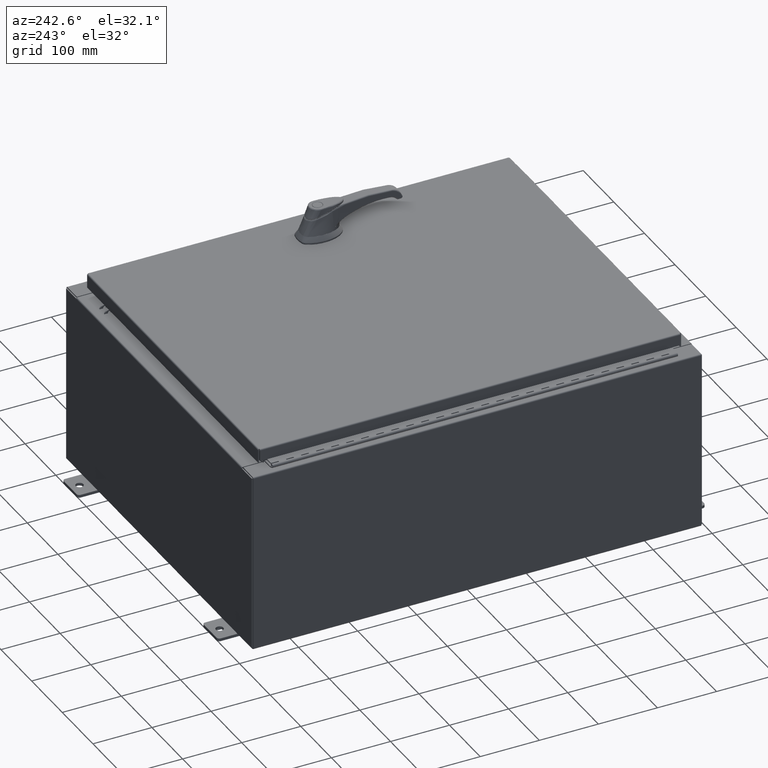
[diagram: clean part render]
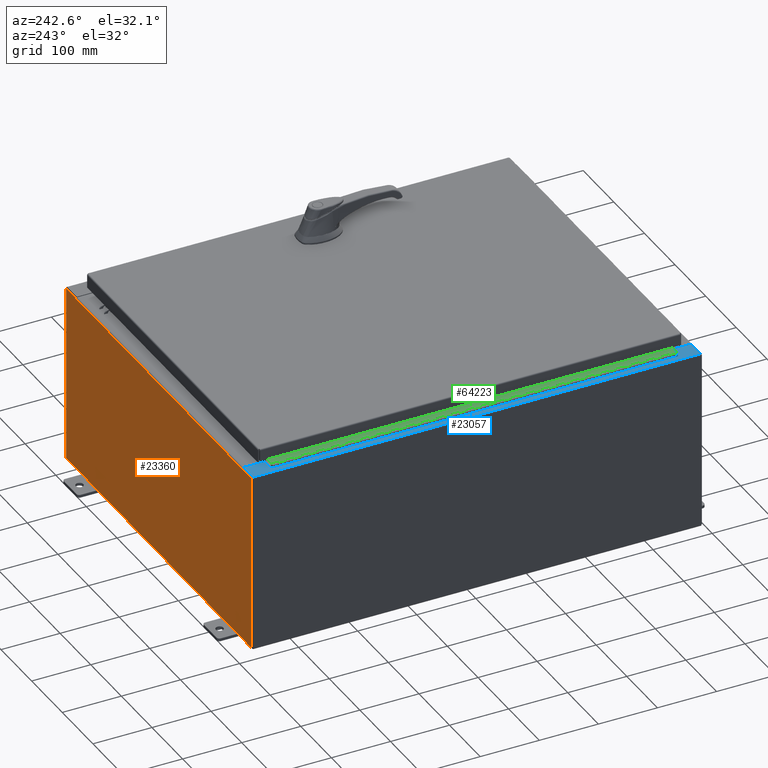
[diagram: same view with three faces highlighted in distinct colors, each labeled with its STEP entity id]
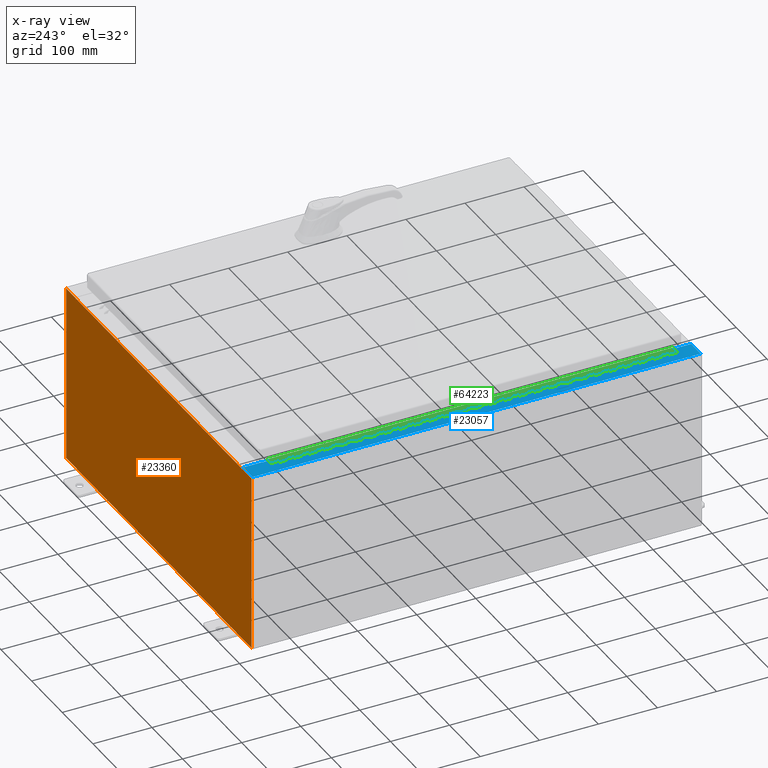
[diagram: x-ray of the same camera — body ghosted, the three highlighted faces saturated]
A machine part, auxiliary view with three faces highlighted in distinct colors.
The next image is the same camera in x-ray (body ghosted, the three faces saturated) — at least one of them is partly hidden behind the body in this view.
Their STEP definitions:

[orange] entity #23360 — the highlighted planar face has unit normal (0, -1, 0).
#400 = LINE ( 'NONE', #34894, #43431 ) ;
#750 = VECTOR ( 'NONE', #117665, 39.37007874015748100 ) ;
#3942 = CARTESIAN_POINT ( 'NONE',  ( -11.92530000000000000, 0.0000000000000000000, 5.925300000000000000 ) ) ;
#4710 = VECTOR ( 'NONE', #18786, 39.37007874015748100 ) ;
#5512 = EDGE_CURVE ( 'NONE', #57851, #41349, #89347, .T. ) ;
#7222 = LINE ( 'NONE', #91380, #104689 ) ;
#9942 = CARTESIAN_POINT ( 'NONE',  ( 11.92530000000000000, 0.0000000000000000000, 5.925300000000001800 ) ) ;
#11008 = VECTOR ( 'NONE', #86296, 39.37007874015748100 ) ;
#12963 = CARTESIAN_POINT ( 'NONE',  ( -10.63720000000000400, -1.707404996040164500E-016, 5.912300000000001000 ) ) ;
#15479 = VECTOR ( 'NONE', #110649, 39.37007874015748100 ) ;
#15615 = CARTESIAN_POINT ( 'NONE',  ( 10.67455000000000200, 0.0000000000000000000, 0.0000000000000000000 ) ) ;
#16000 = VERTEX_POINT ( 'NONE', #69083 ) ;
#16437 = CARTESIAN_POINT ( 'NONE',  ( 10.65587500000000200, 0.0000000000000000000, 5.874950000000001000 ) ) ;
#16503 = EDGE_CURVE ( 'NONE', #26814, #61854, #77795, .T. ) ;
#16625 = AXIS2_PLACEMENT_3D ( 'NONE', #104376, #42847, #106781 ) ;
#17184 = DIRECTION ( 'NONE',  ( -0.0000000000000000000, -0.0000000000000000000, 1.000000000000000000 ) ) ;
#17270 = EDGE_CURVE ( 'NONE', #61374, #16000, #64868, .T. ) ;
#17545 = VERTEX_POINT ( 'NONE', #9942 ) ;
#17591 = CARTESIAN_POINT ( 'NONE',  ( -11.92530000000000000, 0.0000000000000000000, 5.925300000000000000 ) ) ;
#18635 = DIRECTION ( 'NONE',  ( 0.0000000000000000000, 0.0000000000000000000, -1.000000000000000000 ) ) ;
#18786 = DIRECTION ( 'NONE',  ( 0.0000000000000000000, 0.0000000000000000000, 1.000000000000000000 ) ) ;
#20221 = LINE ( 'NONE', #17591, #41799 ) ;
#20895 = EDGE_LOOP ( 'NONE', ( #45602, #56556, #26362, #79217, #107643, #115599, #44932, #26024, #109661, #87901, #99909, #81403 ) ) ;
#22376 = EDGE_CURVE ( 'NONE', #17545, #61374, #110136, .T. ) ;
#23360 = ADVANCED_FACE ( 'NONE', ( #64185 ), #85993, .F. ) ;
#23889 = EDGE_CURVE ( 'NONE', #69888, #101294, #111399, .T. ) ;
#25435 = CARTESIAN_POINT ( 'NONE',  ( 10.63720000000000400, 0.0000000000000000000, 5.912300000000001000 ) ) ;
#25715 = DIRECTION ( 'NONE',  ( 0.0000000000000000000, 0.0000000000000000000, -1.000000000000000000 ) ) ;
#26024 = ORIENTED_EDGE ( 'NONE', *, *, #49969, .T. ) ;
#26307 = VERTEX_POINT ( 'NONE', #85921 ) ;
#26362 = ORIENTED_EDGE ( 'NONE', *, *, #92856, .F. ) ;
#26814 = VERTEX_POINT ( 'NONE', #36665 ) ;
#27922 = CARTESIAN_POINT ( 'NONE',  ( -10.65587500000000200, 0.0000000000000000000, 5.874950000000001000 ) ) ;
#29782 = CARTESIAN_POINT ( 'NONE',  ( -10.63720000000000400, -0.0000000000000000000, 5.874950000000001000 ) ) ;
#31097 = DIRECTION ( 'NONE',  ( -1.000000000000000000, -0.0000000000000000000, -0.0000000000000000000 ) ) ;
#31553 = CARTESIAN_POINT ( 'NONE',  ( 10.67455000000000200, 0.0000000000000000000, 5.925300000000001800 ) ) ;
#33064 = CARTESIAN_POINT ( 'NONE',  ( -11.92530000000000000, 0.0000000000000000000, -5.925299999999999100 ) ) ;
#34768 = VECTOR ( 'NONE', #31097, 39.37007874015748100 ) ;
#34894 = CARTESIAN_POINT ( 'NONE',  ( -11.92530000000000000, 0.0000000000000000000, 5.925300000000000000 ) ) ;
#36665 = CARTESIAN_POINT ( 'NONE',  ( -10.67455000000000200, 0.0000000000000000000, 5.874950000000001000 ) ) ;
#37022 = CIRCLE ( 'NONE', #98697, 0.01867499999999949400 ) ;
#37176 = DIRECTION ( 'NONE',  ( 0.0000000000000000000, 0.0000000000000000000, -1.000000000000000000 ) ) ;
#41349 = VERTEX_POINT ( 'NONE', #69584 ) ;
#41799 = VECTOR ( 'NONE', #17184, 39.37007874015748100 ) ;
#42847 = DIRECTION ( 'NONE',  ( 0.0000000000000000000, -1.000000000000000000, 0.0000000000000000000 ) ) ;
#43431 = VECTOR ( 'NONE', #99272, 39.37007874015748100 ) ;
#44038 = CARTESIAN_POINT ( 'NONE',  ( -10.67455000000000200, -0.0000000000000000000, 0.0000000000000000000 ) ) ;
#44561 = CARTESIAN_POINT ( 'NONE',  ( 10.63720000000000400, 0.0000000000000000000, 0.0000000000000000000 ) ) ;
#44709 = EDGE_CURVE ( 'NONE', #62669, #61854, #93907, .T. ) ;
#44932 = ORIENTED_EDGE ( 'NONE', *, *, #5512, .F. ) ;
#45602 = ORIENTED_EDGE ( 'NONE', *, *, #16503, .F. ) ;
#46634 = CARTESIAN_POINT ( 'NONE',  ( 11.92530000000000000, 0.0000000000000000000, 5.925300000000001800 ) ) ;
#49354 = CARTESIAN_POINT ( 'NONE',  ( 11.92530000000000000, 0.0000000000000000000, -5.925299999999999100 ) ) ;
#49969 = EDGE_CURVE ( 'NONE', #57851, #17545, #400, .T. ) ;
#51358 = EDGE_CURVE ( 'NONE', #16000, #62669, #20221, .T. ) ;
#54469 = AXIS2_PLACEMENT_3D ( 'NONE', #16437, #80581, #25715 ) ;
#56556 = ORIENTED_EDGE ( 'NONE', *, *, #96291, .F. ) ;
#57851 = VERTEX_POINT ( 'NONE', #31553 ) ;
#61374 = VERTEX_POINT ( 'NONE', #49354 ) ;
#61854 = VERTEX_POINT ( 'NONE', #72319 ) ;
#62669 = VERTEX_POINT ( 'NONE', #3942 ) ;
#64185 = FACE_OUTER_BOUND ( 'NONE', #20895, .T. ) ;
#64868 = LINE ( 'NONE', #33064, #34768 ) ;
#69083 = CARTESIAN_POINT ( 'NONE',  ( -11.92530000000000000, 0.0000000000000000000, -5.925299999999999100 ) ) ;
#69584 = CARTESIAN_POINT ( 'NONE',  ( 10.67455000000000200, 0.0000000000000000000, 5.874950000000001000 ) ) ;
#69888 = VERTEX_POINT ( 'NONE', #99562 ) ;
#72319 = CARTESIAN_POINT ( 'NONE',  ( -10.67455000000000200, 0.0000000000000000000, 5.925300000000000000 ) ) ;
#77795 = LINE ( 'NONE', #44038, #4710 ) ;
#77973 = DIRECTION ( 'NONE',  ( 1.000000000000000000, 0.0000000000000000000, 4.581600452255731000E-017 ) ) ;
#78197 = VECTOR ( 'NONE', #77973, 39.37007874015748100 ) ;
#79217 = ORIENTED_EDGE ( 'NONE', *, *, #23889, .T. ) ;
#80581 = DIRECTION ( 'NONE',  ( -0.0000000000000000000, 1.000000000000000000, -0.0000000000000000000 ) ) ;
#81403 = ORIENTED_EDGE ( 'NONE', *, *, #44709, .T. ) ;
#82232 = DIRECTION ( 'NONE',  ( 0.0000000000000000000, 0.0000000000000000000, -1.000000000000000000 ) ) ;
#85921 = CARTESIAN_POINT ( 'NONE',  ( 10.63720000000000400, 0.0000000000000000000, 5.874950000000001000 ) ) ;
#85993 = PLANE ( 'NONE',  #16625 ) ;
#86296 = DIRECTION ( 'NONE',  ( 1.000000000000000000, 0.0000000000000000000, 0.0000000000000000000 ) ) ;
#86395 = EDGE_CURVE ( 'NONE', #26307, #101294, #98095, .T. ) ;
#87901 = ORIENTED_EDGE ( 'NONE', *, *, #17270, .T. ) ;
#89347 = LINE ( 'NONE', #15615, #113724 ) ;
#91380 = CARTESIAN_POINT ( 'NONE',  ( -10.63720000000000400, -0.0000000000000000000, 0.0000000000000000000 ) ) ;
#91927 = DIRECTION ( 'NONE',  ( -0.0000000000000000000, 1.000000000000000000, -0.0000000000000000000 ) ) ;
#92856 = EDGE_CURVE ( 'NONE', #69888, #116993, #7222, .T. ) ;
#93907 = LINE ( 'NONE', #95975, #78197 ) ;
#95975 = CARTESIAN_POINT ( 'NONE',  ( -11.92530000000000000, 0.0000000000000000000, 5.925300000000000000 ) ) ;
#96291 = EDGE_CURVE ( 'NONE', #116993, #26814, #37022, .T. ) ;
#98095 = LINE ( 'NONE', #44561, #750 ) ;
#98697 = AXIS2_PLACEMENT_3D ( 'NONE', #27922, #91927, #37176 ) ;
#99272 = DIRECTION ( 'NONE',  ( 1.000000000000000000, 0.0000000000000000000, 4.581600452255731000E-017 ) ) ;
#99562 = CARTESIAN_POINT ( 'NONE',  ( -10.63720000000000400, -1.707404996040164500E-016, 5.912300000000001000 ) ) ;
#99909 = ORIENTED_EDGE ( 'NONE', *, *, #51358, .T. ) ;
#101294 = VERTEX_POINT ( 'NONE', #25435 ) ;
#103541 = CIRCLE ( 'NONE', #54469, 0.01867499999999949400 ) ;
#104376 = CARTESIAN_POINT ( 'NONE',  ( 0.0000000000000000000, 0.0000000000000000000, 0.0000000000000000000 ) ) ;
#104689 = VECTOR ( 'NONE', #82232, 39.37007874015748100 ) ;
#106781 = DIRECTION ( 'NONE',  ( 0.0000000000000000000, -0.0000000000000000000, -1.000000000000000000 ) ) ;
#107643 = ORIENTED_EDGE ( 'NONE', *, *, #86395, .F. ) ;
#109661 = ORIENTED_EDGE ( 'NONE', *, *, #22376, .T. ) ;
#110136 = LINE ( 'NONE', #46634, #15479 ) ;
#110649 = DIRECTION ( 'NONE',  ( 0.0000000000000000000, 0.0000000000000000000, -1.000000000000000000 ) ) ;
#111399 = LINE ( 'NONE', #12963, #11008 ) ;
#113724 = VECTOR ( 'NONE', #18635, 39.37007874015748100 ) ;
#115411 = EDGE_CURVE ( 'NONE', #41349, #26307, #103541, .T. ) ;
#115599 = ORIENTED_EDGE ( 'NONE', *, *, #115411, .F. ) ;
#116993 = VERTEX_POINT ( 'NONE', #29782 ) ;
#117665 = DIRECTION ( 'NONE',  ( 0.0000000000000000000, 0.0000000000000000000, 1.000000000000000000 ) ) ;

[blue] entity #23057 — the highlighted planar face has unit normal (0, 0, -1).
#393 = CARTESIAN_POINT ( 'NONE',  ( -8.532114493236847900E-014, 0.0000000000000000000, 11.92530000000008500 ) ) ;
#690 = ORIENTED_EDGE ( 'NONE', *, *, #42947, .T. ) ;
#1370 = ORIENTED_EDGE ( 'NONE', *, *, #67983, .T. ) ;
#5053 = DIRECTION ( 'NONE',  ( 1.000000000000000000, 0.0000000000000000000, 0.0000000000000000000 ) ) ;
#5618 = ORIENTED_EDGE ( 'NONE', *, *, #59204, .F. ) ;
#7667 = CARTESIAN_POINT ( 'NONE',  ( -10.75005000000005000, -13.63109999999999800, 11.92530000000000900 ) ) ;
#8221 = FACE_OUTER_BOUND ( 'NONE', #28443, .T. ) ;
#10348 = LINE ( 'NONE', #84052, #56282 ) ;
#10398 = CARTESIAN_POINT ( 'NONE',  ( -10.71270000000005000, 13.59374999999999800, 11.92530000000000900 ) ) ;
#10411 = DIRECTION ( 'NONE',  ( 1.000000000000000000, -0.0000000000000000000, 7.132762385546384700E-015 ) ) ;
#10899 = DIRECTION ( 'NONE',  ( -0.0000000000000000000, -1.000000000000000000, -0.0000000000000000000 ) ) ;
#12306 = LINE ( 'NONE', #38341, #55402 ) ;
#12719 = ORIENTED_EDGE ( 'NONE', *, *, #29056, .F. ) ;
#15370 = LINE ( 'NONE', #110586, #110016 ) ;
#15709 = CARTESIAN_POINT ( 'NONE',  ( -10.75005000000005000, -13.63109999999999800, 11.92530000000000900 ) ) ;
#15894 = VECTOR ( 'NONE', #103901, 39.37007874015748100 ) ;
#16880 = DIRECTION ( 'NONE',  ( 1.000000000000000000, 0.0000000000000000000, 0.0000000000000000000 ) ) ;
#18732 = DIRECTION ( 'NONE',  ( 7.132762385546384700E-015, 0.0000000000000000000, -1.000000000000000000 ) ) ;
#20940 = VERTEX_POINT ( 'NONE', #56316 ) ;
#21315 = VECTOR ( 'NONE', #10899, 39.37007874015748100 ) ;
#22333 = VERTEX_POINT ( 'NONE', #15709 ) ;
#23057 = ADVANCED_FACE ( 'NONE', ( #8221 ), #46118, .F. ) ;
#24715 = CARTESIAN_POINT ( 'NONE',  ( -11.91230000000004600, 14.92530000000000000, 11.92530000000000000 ) ) ;
#25097 = AXIS2_PLACEMENT_3D ( 'NONE', #393, #18732, #82877 ) ;
#25337 = LINE ( 'NONE', #112380, #98372 ) ;
#26248 = AXIS2_PLACEMENT_3D ( 'NONE', #26413, #90416, #35656 ) ;
#26413 = CARTESIAN_POINT ( 'NONE',  ( -10.75005000000005000, 13.61242499999999600, 11.92530000000000900 ) ) ;
#26933 = ORIENTED_EDGE ( 'NONE', *, *, #54922, .F. ) ;
#28443 = EDGE_LOOP ( 'NONE', ( #109943, #63762, #690, #65620, #29951, #1370, #37354, #52812, #26933, #32742, #12719, #5618 ) ) ;
#29056 = EDGE_CURVE ( 'NONE', #54921, #55460, #10348, .T. ) ;
#29290 = EDGE_CURVE ( 'NONE', #90396, #22333, #66281, .T. ) ;
#29951 = ORIENTED_EDGE ( 'NONE', *, *, #109942, .T. ) ;
#31783 = CIRCLE ( 'NONE', #26248, 0.01867499999999949400 ) ;
#32742 = ORIENTED_EDGE ( 'NONE', *, *, #75392, .F. ) ;
#35656 = DIRECTION ( 'NONE',  ( 1.000000000000000000, 0.0000000000000000000, 0.0000000000000000000 ) ) ;
#37354 = ORIENTED_EDGE ( 'NONE', *, *, #99886, .F. ) ;
#38092 = CARTESIAN_POINT ( 'NONE',  ( -10.75005000000005000, -13.59375000000000000, 11.92530000000000900 ) ) ;
#38341 = CARTESIAN_POINT ( 'NONE',  ( -10.69970000000004800, 0.0000000000000000000, 11.92530000000000900 ) ) ;
#41416 = VERTEX_POINT ( 'NONE', #24715 ) ;
#42947 = EDGE_CURVE ( 'NONE', #52188, #41416, #25337, .T. ) ;
#43953 = LINE ( 'NONE', #7667, #89654 ) ;
#44564 = CARTESIAN_POINT ( 'NONE',  ( -10.69970000000004800, 13.63109999999999800, 11.92530000000000900 ) ) ;
#46118 = PLANE ( 'NONE',  #25097 ) ;
#47210 = CARTESIAN_POINT ( 'NONE',  ( -10.75005000000005000, 13.59374999999999800, 11.92530000000000900 ) ) ;
#47568 = DIRECTION ( 'NONE',  ( 0.0000000000000000000, 1.000000000000000000, 0.0000000000000000000 ) ) ;
#48786 = DIRECTION ( 'NONE',  ( -1.000000000000000000, 0.0000000000000000000, -7.132762385546384700E-015 ) ) ;
#52188 = VERTEX_POINT ( 'NONE', #68320 ) ;
#52812 = ORIENTED_EDGE ( 'NONE', *, *, #29290, .F. ) ;
#53719 = DIRECTION ( 'NONE',  ( -1.000000000000000000, -4.340572780399910900E-014, 0.0000000000000000000 ) ) ;
#54921 = VERTEX_POINT ( 'NONE', #47210 ) ;
#54922 = EDGE_CURVE ( 'NONE', #98423, #90396, #62788, .T. ) ;
#55402 = VECTOR ( 'NONE', #47568, 39.37007874015748100 ) ;
#55460 = VERTEX_POINT ( 'NONE', #10398 ) ;
#56282 = VECTOR ( 'NONE', #74852, 39.37007874015748100 ) ;
#56316 = CARTESIAN_POINT ( 'NONE',  ( -10.69970000000004800, 13.63109999999999800, 11.92530000000000900 ) ) ;
#59204 = EDGE_CURVE ( 'NONE', #86199, #54921, #31783, .T. ) ;
#59950 = DIRECTION ( 'NONE',  ( -7.132762385546384700E-015, -0.0000000000000000000, 1.000000000000000000 ) ) ;
#60739 = AXIS2_PLACEMENT_3D ( 'NONE', #114769, #59950, #5053 ) ;
#62788 = LINE ( 'NONE', #101963, #111521 ) ;
#63762 = ORIENTED_EDGE ( 'NONE', *, *, #99640, .T. ) ;
#64705 = LINE ( 'NONE', #113167, #15894 ) ;
#65571 = DIRECTION ( 'NONE',  ( -1.000000000000000000, 0.0000000000000000000, 0.0000000000000000000 ) ) ;
#65620 = ORIENTED_EDGE ( 'NONE', *, *, #96840, .F. ) ;
#66281 = CIRCLE ( 'NONE', #60739, 0.01867499999999949400 ) ;
#67706 = CARTESIAN_POINT ( 'NONE',  ( -10.71270000000005000, -13.59375000000000000, 11.92530000000000900 ) ) ;
#67983 = EDGE_CURVE ( 'NONE', #74065, #99139, #64705, .T. ) ;
#68320 = CARTESIAN_POINT ( 'NONE',  ( -10.69970000000004800, 14.92530000000000000, 11.92530000000000900 ) ) ;
#74065 = VERTEX_POINT ( 'NONE', #99404 ) ;
#74852 = DIRECTION ( 'NONE',  ( 1.000000000000000000, 0.0000000000000000000, 0.0000000000000000000 ) ) ;
#75392 = EDGE_CURVE ( 'NONE', #55460, #98423, #118693, .T. ) ;
#75552 = VECTOR ( 'NONE', #88917, 39.37007874015748100 ) ;
#77557 = CARTESIAN_POINT ( 'NONE',  ( -10.69970000000004800, -13.63110000000000200, 11.92530000000000900 ) ) ;
#79748 = CARTESIAN_POINT ( 'NONE',  ( -11.91230000000004600, 14.92530000000000000, 11.92530000000000000 ) ) ;
#81299 = LINE ( 'NONE', #79748, #75552 ) ;
#82877 = DIRECTION ( 'NONE',  ( -1.000000000000000000, 0.0000000000000000000, -7.132762385546384700E-015 ) ) ;
#84052 = CARTESIAN_POINT ( 'NONE',  ( -10.75005000000005000, 13.59374999999999800, 11.92530000000000900 ) ) ;
#86199 = VERTEX_POINT ( 'NONE', #94920 ) ;
#87143 = VECTOR ( 'NONE', #53719, 39.37007874015748100 ) ;
#88917 = DIRECTION ( 'NONE',  ( -0.0000000000000000000, 1.000000000000000000, -0.0000000000000000000 ) ) ;
#89654 = VECTOR ( 'NONE', #16880, 39.37007874015748100 ) ;
#90396 = VERTEX_POINT ( 'NONE', #38092 ) ;
#90416 = DIRECTION ( 'NONE',  ( -7.132762385546384700E-015, -0.0000000000000000000, 1.000000000000000000 ) ) ;
#94920 = CARTESIAN_POINT ( 'NONE',  ( -10.75005000000005000, 13.63109999999999600, 11.92530000000000900 ) ) ;
#95784 = EDGE_CURVE ( 'NONE', #20940, #86199, #111539, .T. ) ;
#96840 = EDGE_CURVE ( 'NONE', #108167, #41416, #81299, .T. ) ;
#98372 = VECTOR ( 'NONE', #48786, 39.37007874015748100 ) ;
#98423 = VERTEX_POINT ( 'NONE', #67706 ) ;
#99139 = VERTEX_POINT ( 'NONE', #77557 ) ;
#99404 = CARTESIAN_POINT ( 'NONE',  ( -10.69970000000004800, -14.92530000000000000, 11.92530000000000900 ) ) ;
#99640 = EDGE_CURVE ( 'NONE', #20940, #52188, #12306, .T. ) ;
#99886 = EDGE_CURVE ( 'NONE', #22333, #99139, #43953, .T. ) ;
#101963 = CARTESIAN_POINT ( 'NONE',  ( -10.71270000000005000, -13.59375000000000000, 11.92530000000000900 ) ) ;
#103901 = DIRECTION ( 'NONE',  ( 0.0000000000000000000, 1.000000000000000000, 0.0000000000000000000 ) ) ;
#108167 = VERTEX_POINT ( 'NONE', #117204 ) ;
#109942 = EDGE_CURVE ( 'NONE', #108167, #74065, #15370, .T. ) ;
#109943 = ORIENTED_EDGE ( 'NONE', *, *, #95784, .F. ) ;
#110016 = VECTOR ( 'NONE', #10411, 39.37007874015748100 ) ;
#110586 = CARTESIAN_POINT ( 'NONE',  ( -8.532114493236847900E-014, -14.92530000000000000, 11.92530000000008500 ) ) ;
#111114 = CARTESIAN_POINT ( 'NONE',  ( -10.71270000000005000, 13.59375000000000000, 11.92530000000000900 ) ) ;
#111521 = VECTOR ( 'NONE', #65571, 39.37007874015748100 ) ;
#111539 = LINE ( 'NONE', #44564, #87143 ) ;
#112380 = CARTESIAN_POINT ( 'NONE',  ( -8.532114493236847900E-014, 14.92530000000000000, 11.92530000000008500 ) ) ;
#113167 = CARTESIAN_POINT ( 'NONE',  ( -10.69970000000004800, 0.0000000000000000000, 11.92530000000000900 ) ) ;
#114769 = CARTESIAN_POINT ( 'NONE',  ( -10.75005000000005000, -13.61242500000000000, 11.92530000000000900 ) ) ;
#117204 = CARTESIAN_POINT ( 'NONE',  ( -11.91230000000004600, -14.92530000000000000, 11.92530000000000000 ) ) ;
#118693 = LINE ( 'NONE', #111114, #21315 ) ;

[green] entity #64223 — the highlighted planar face has unit normal (-0, -0, 1).
#157 = EDGE_CURVE ( 'NONE', #93175, #6505, #112934, .T. ) ;
#287 = LINE ( 'NONE', #55804, #27519 ) ;
#396 = CARTESIAN_POINT ( 'NONE',  ( -0.6869999999999978300, 0.6754999999999996600, -27.00000000000000000 ) ) ;
#411 = LINE ( 'NONE', #102380, #116374 ) ;
#417 = VERTEX_POINT ( 'NONE', #8844 ) ;
#504 = ORIENTED_EDGE ( 'NONE', *, *, #101102, .F. ) ;
#659 = ORIENTED_EDGE ( 'NONE', *, *, #80418, .F. ) ;
#995 = DIRECTION ( 'NONE',  ( -3.389037039080723100E-015, -1.000000000000000000, 0.0000000000000000000 ) ) ;
#1036 = CARTESIAN_POINT ( 'NONE',  ( -0.6869999999999978300, 0.6754999999999996600, -27.00000000000000000 ) ) ;
#1102 = LINE ( 'NONE', #4353, #44129 ) ;
#1251 = ORIENTED_EDGE ( 'NONE', *, *, #52260, .F. ) ;
#1276 = ORIENTED_EDGE ( 'NONE', *, *, #96518, .F. ) ;
#1452 = ORIENTED_EDGE ( 'NONE', *, *, #37863, .T. ) ;
#1456 = EDGE_CURVE ( 'NONE', #46877, #38486, #116995, .T. ) ;
#1470 = DIRECTION ( 'NONE',  ( 0.0000000000000000000, 0.0000000000000000000, 1.000000000000000000 ) ) ;
#1568 = VECTOR ( 'NONE', #90980, 39.37007874015748100 ) ;
#1771 = CARTESIAN_POINT ( 'NONE',  ( -0.6869999999999978300, 0.6754999999999996600, -27.00000000000000000 ) ) ;
#1791 = DIRECTION ( 'NONE',  ( 3.389037039080723100E-015, 1.000000000000000000, -0.0000000000000000000 ) ) ;
#1918 = DIRECTION ( 'NONE',  ( 0.0000000000000000000, 0.0000000000000000000, 1.000000000000000000 ) ) ;
#2005 = VECTOR ( 'NONE', #105438, 39.37007874015748100 ) ;
#2014 = VECTOR ( 'NONE', #105234, 39.37007874015748100 ) ;
#2163 = CARTESIAN_POINT ( 'NONE',  ( -0.6869999999999978300, 0.6754999999999996600, -9.000000000000000000 ) ) ;
#2443 = VERTEX_POINT ( 'NONE', #55869 ) ;
#2597 = VECTOR ( 'NONE', #112128, 39.37007874015748100 ) ;
#2612 = ORIENTED_EDGE ( 'NONE', *, *, #93080, .F. ) ;
#2729 = LINE ( 'NONE', #56650, #51524 ) ;
#2826 = VERTEX_POINT ( 'NONE', #109910 ) ;
#3260 = VECTOR ( 'NONE', #38660, 39.37007874015748100 ) ;
#3327 = ORIENTED_EDGE ( 'NONE', *, *, #102009, .F. ) ;
#3340 = LINE ( 'NONE', #44683, #49263 ) ;
#3371 = EDGE_CURVE ( 'NONE', #72102, #40407, #49576, .T. ) ;
#3428 = LINE ( 'NONE', #102675, #73705 ) ;
#3522 = DIRECTION ( 'NONE',  ( 3.389037039080723100E-015, 1.000000000000000000, -0.0000000000000000000 ) ) ;
#3733 = VECTOR ( 'NONE', #47001, 39.37007874015748100 ) ;
#4042 = ORIENTED_EDGE ( 'NONE', *, *, #27859, .F. ) ;
#4120 = EDGE_CURVE ( 'NONE', #113031, #80199, #9248, .T. ) ;
#4178 = VECTOR ( 'NONE', #104881, 39.37007874015748100 ) ;
#4223 = VECTOR ( 'NONE', #117941, 39.37007874015748100 ) ;
#4353 = CARTESIAN_POINT ( 'NONE',  ( -0.6869999999999982800, 0.5504999999999997700, -12.49999999999999800 ) ) ;
#4377 = CARTESIAN_POINT ( 'NONE',  ( -0.6869999999999982800, 0.5504999999999997700, -16.50000000000000000 ) ) ;
#4494 = EDGE_CURVE ( 'NONE', #85888, #2443, #40823, .T. ) ;
#4617 = VECTOR ( 'NONE', #21507, 39.37007874015748100 ) ;
#4925 = VERTEX_POINT ( 'NONE', #41151 ) ;
#5051 = VERTEX_POINT ( 'NONE', #22085 ) ;
#5086 = CARTESIAN_POINT ( 'NONE',  ( -0.6869999999999978300, 0.6754999999999996600, -27.00000000000000000 ) ) ;
#5128 = VECTOR ( 'NONE', #19585, 39.37007874015748100 ) ;
#5191 = CARTESIAN_POINT ( 'NONE',  ( -0.6869999999999973900, 0.8004999999999995500, -16.50000000000000000 ) ) ;
#5316 = CARTESIAN_POINT ( 'NONE',  ( -0.6869999999999978300, 0.6754999999999996600, -27.00000000000000000 ) ) ;
#5351 = VERTEX_POINT ( 'NONE', #7200 ) ;
#5383 = VECTOR ( 'NONE', #32659, 39.37007874015748100 ) ;
#5542 = CARTESIAN_POINT ( 'NONE',  ( -0.6869999999999973900, 0.8004999999999995500, -18.50000000000000000 ) ) ;
#5575 = ORIENTED_EDGE ( 'NONE', *, *, #29853, .T. ) ;
#6093 = LINE ( 'NONE', #86466, #70612 ) ;
#6110 = LINE ( 'NONE', #1771, #3260 ) ;
#6505 = VERTEX_POINT ( 'NONE', #101700 ) ;
#6701 = LINE ( 'NONE', #101238, #44078 ) ;
#6817 = DIRECTION ( 'NONE',  ( 0.0000000000000000000, -0.0000000000000000000, -1.000000000000000000 ) ) ;
#7010 = VERTEX_POINT ( 'NONE', #57138 ) ;
#7200 = CARTESIAN_POINT ( 'NONE',  ( -0.6869999999999978300, 0.6754999999999996600, -25.50000000000000400 ) ) ;
#7327 = CARTESIAN_POINT ( 'NONE',  ( -0.6869999999999978300, 0.6754999999999996600, 0.0000000000000000000 ) ) ;
#7529 = CARTESIAN_POINT ( 'NONE',  ( -0.6870000000000022800, -0.6245000000000003900, -27.00000000000000000 ) ) ;
#7571 = DIRECTION ( 'NONE',  ( 3.389037039080723100E-015, 1.000000000000000000, -0.0000000000000000000 ) ) ;
#7679 = LINE ( 'NONE', #114480, #2014 ) ;
#7885 = LINE ( 'NONE', #38688, #10771 ) ;
#7980 = LINE ( 'NONE', #101458, #53943 ) ;
#8289 = VERTEX_POINT ( 'NONE', #9801 ) ;
#8317 = ORIENTED_EDGE ( 'NONE', *, *, #35063, .F. ) ;
#8471 = DIRECTION ( 'NONE',  ( 3.389037039080723100E-015, 1.000000000000000000, -0.0000000000000000000 ) ) ;
#8472 = VERTEX_POINT ( 'NONE', #83879 ) ;
#8834 = VECTOR ( 'NONE', #51167, 39.37007874015748100 ) ;
#8844 = CARTESIAN_POINT ( 'NONE',  ( -0.6869999999999978300, 0.6754999999999996600, -9.500000000000000000 ) ) ;
#9248 = LINE ( 'NONE', #71202, #30765 ) ;
#9276 = LINE ( 'NONE', #5191, #48775 ) ;
#9519 = ORIENTED_EDGE ( 'NONE', *, *, #72741, .F. ) ;
#9688 = DIRECTION ( 'NONE',  ( 0.0000000000000000000, -0.0000000000000000000, -1.000000000000000000 ) ) ;
#9801 = CARTESIAN_POINT ( 'NONE',  ( -0.6869999999999982800, 0.5504999999999997700, -9.500000000000000000 ) ) ;
#10072 = DIRECTION ( 'NONE',  ( 0.0000000000000000000, -0.0000000000000000000, -1.000000000000000000 ) ) ;
#10302 = CARTESIAN_POINT ( 'NONE',  ( -0.6869999999999998300, 0.07549999999999991400, 0.0000000000000000000 ) ) ;
#10316 = DIRECTION ( 'NONE',  ( -3.389037039080723100E-015, -1.000000000000000000, 0.0000000000000000000 ) ) ;
#10474 = ORIENTED_EDGE ( 'NONE', *, *, #98233, .T. ) ;
#10771 = VECTOR ( 'NONE', #114447, 39.37007874015748100 ) ;
#10795 = CARTESIAN_POINT ( 'NONE',  ( -0.6869999999999978300, 0.6754999999999996600, -27.00000000000000000 ) ) ;
#11204 = VERTEX_POINT ( 'NONE', #106409 ) ;
#11577 = VERTEX_POINT ( 'NONE', #78954 ) ;
#11617 = DIRECTION ( 'NONE',  ( 0.0000000000000000000, 0.0000000000000000000, 1.000000000000000000 ) ) ;
#11689 = DIRECTION ( 'NONE',  ( 0.0000000000000000000, 0.0000000000000000000, 1.000000000000000000 ) ) ;
#11725 = LINE ( 'NONE', #16771, #106287 ) ;
#11870 = VERTEX_POINT ( 'NONE', #2163 ) ;
#11884 = LINE ( 'NONE', #86106, #106456 ) ;
#11897 = VERTEX_POINT ( 'NONE', #41565 ) ;
#12056 = ORIENTED_EDGE ( 'NONE', *, *, #63938, .F. ) ;
#12260 = CARTESIAN_POINT ( 'NONE',  ( -0.6869999999999973900, 0.8004999999999995500, -22.00000000000000000 ) ) ;
#12353 = ORIENTED_EDGE ( 'NONE', *, *, #89334, .F. ) ;
#12379 = VECTOR ( 'NONE', #105141, 39.37007874015748100 ) ;
#12594 = VECTOR ( 'NONE', #78418, 39.37007874015748100 ) ;
#12685 = VERTEX_POINT ( 'NONE', #86048 ) ;
#12830 = ORIENTED_EDGE ( 'NONE', *, *, #1456, .F. ) ;
#13197 = EDGE_CURVE ( 'NONE', #90505, #43433, #118275, .T. ) ;
#13325 = CARTESIAN_POINT ( 'NONE',  ( -0.6869999999999978300, 0.6754999999999996600, -20.00000000000000000 ) ) ;
#13610 = LINE ( 'NONE', #32039, #86756 ) ;
#13743 = LINE ( 'NONE', #37532, #111292 ) ;
#13871 = EDGE_CURVE ( 'NONE', #42242, #83737, #7885, .T. ) ;
#13954 = CARTESIAN_POINT ( 'NONE',  ( -0.6869999999999973900, 0.8004999999999995500, -4.000000000000000000 ) ) ;
#13959 = DIRECTION ( 'NONE',  ( 0.0000000000000000000, 0.0000000000000000000, 1.000000000000000000 ) ) ;
#14418 = EDGE_CURVE ( 'NONE', #104384, #68480, #55239, .T. ) ;
#14477 = DIRECTION ( 'NONE',  ( 0.0000000000000000000, 0.0000000000000000000, 1.000000000000000000 ) ) ;
#14544 = CARTESIAN_POINT ( 'NONE',  ( -0.6869999999999973900, 0.8004999999999995500, -12.49999999999999800 ) ) ;
#14634 = CARTESIAN_POINT ( 'NONE',  ( -0.6869999999999982800, 0.5504999999999997700, -7.499999999999999100 ) ) ;
#14728 = LINE ( 'NONE', #1036, #17616 ) ;
#14796 = VECTOR ( 'NONE', #23198, 39.37007874015748100 ) ;
#14890 = VECTOR ( 'NONE', #108950, 39.37007874015748100 ) ;
#15047 = EDGE_CURVE ( 'NONE', #78774, #84243, #48038, .T. ) ;
#15319 = CARTESIAN_POINT ( 'NONE',  ( -0.6869999999999982800, 0.5504999999999997700, -12.99999999999999800 ) ) ;
#15322 = CARTESIAN_POINT ( 'NONE',  ( -0.6869999999999982800, 0.5504999999999997700, -25.50000000000000400 ) ) ;
#15367 = EDGE_CURVE ( 'NONE', #99984, #92067, #46547, .T. ) ;
#15452 = LINE ( 'NONE', #69265, #12594 ) ;
#15678 = EDGE_CURVE ( 'NONE', #93175, #41988, #75084, .T. ) ;
#15838 = EDGE_CURVE ( 'NONE', #78945, #75664, #112309, .T. ) ;
#15930 = CARTESIAN_POINT ( 'NONE',  ( -0.6869999999999982800, 0.5504999999999997700, -9.000000000000000000 ) ) ;
#16130 = EDGE_CURVE ( 'NONE', #90978, #30355, #52136, .T. ) ;
#16354 = VECTOR ( 'NONE', #11689, 39.37007874015748100 ) ;
#16403 = CARTESIAN_POINT ( 'NONE',  ( -0.6869999999999978300, 0.6754999999999996600, -27.00000000000000000 ) ) ;
#16584 = VERTEX_POINT ( 'NONE', #45954 ) ;
#16729 = PLANE ( 'NONE',  #90901 ) ;
#16747 = ORIENTED_EDGE ( 'NONE', *, *, #102841, .T. ) ;
#16771 = CARTESIAN_POINT ( 'NONE',  ( -0.6869999999999973900, 0.8004999999999995500, -21.00000000000000000 ) ) ;
#16937 = VERTEX_POINT ( 'NONE', #62924 ) ;
#17065 = LINE ( 'NONE', #81257, #62984 ) ;
#17104 = CARTESIAN_POINT ( 'NONE',  ( -0.6869999999999982800, 0.5504999999999997700, -16.00000000000000000 ) ) ;
#17198 = VERTEX_POINT ( 'NONE', #82042 ) ;
#17516 = DIRECTION ( 'NONE',  ( 0.0000000000000000000, -0.0000000000000000000, -1.000000000000000000 ) ) ;
#17616 = VECTOR ( 'NONE', #65118, 39.37007874015748100 ) ;
#17804 = CARTESIAN_POINT ( 'NONE',  ( -0.6869999999999973900, 0.8004999999999995500, -24.50000000000000000 ) ) ;
#17879 = VERTEX_POINT ( 'NONE', #57611 ) ;
#18126 = LINE ( 'NONE', #85578, #45527 ) ;
#18336 = ORIENTED_EDGE ( 'NONE', *, *, #19043, .T. ) ;
#18643 = EDGE_CURVE ( 'NONE', #77847, #11577, #46110, .T. ) ;
#18675 = EDGE_CURVE ( 'NONE', #118211, #20683, #43215, .T. ) ;
#18766 = CARTESIAN_POINT ( 'NONE',  ( -0.6869999999999978300, 0.6754999999999996600, -8.000000000000000000 ) ) ;
#18819 = CARTESIAN_POINT ( 'NONE',  ( -0.6869999999999978300, 0.6754999999999996600, -24.99999999999999600 ) ) ;
#18845 = CARTESIAN_POINT ( 'NONE',  ( -0.6869999999999973900, 0.8004999999999995500, -11.00000000000000000 ) ) ;
#18884 = CARTESIAN_POINT ( 'NONE',  ( -0.6869999999999982800, 0.5504999999999997700, -6.499999999999999100 ) ) ;
#19043 = EDGE_CURVE ( 'NONE', #101348, #103113, #25876, .T. ) ;
#19167 = ORIENTED_EDGE ( 'NONE', *, *, #114386, .T. ) ;
#19189 = VECTOR ( 'NONE', #46661, 39.37007874015748100 ) ;
#19585 = DIRECTION ( 'NONE',  ( 3.389037039080723100E-015, 1.000000000000000000, -0.0000000000000000000 ) ) ;
#19699 = DIRECTION ( 'NONE',  ( 0.0000000000000000000, 0.0000000000000000000, 1.000000000000000000 ) ) ;
#19805 = VERTEX_POINT ( 'NONE', #84449 ) ;
#19812 = VERTEX_POINT ( 'NONE', #47701 ) ;
#19894 = CARTESIAN_POINT ( 'NONE',  ( -0.6869999999999978300, 0.6754999999999996600, -27.00000000000000000 ) ) ;
#19913 = CARTESIAN_POINT ( 'NONE',  ( -0.6869999999999973900, 0.8004999999999995500, -2.000000000000000000 ) ) ;
#20077 = DIRECTION ( 'NONE',  ( -3.389037039080723100E-015, -1.000000000000000000, 0.0000000000000000000 ) ) ;
#20087 = CARTESIAN_POINT ( 'NONE',  ( -0.6869999999999978300, 0.6754999999999996600, -0.5000000000000000000 ) ) ;
#20184 = CARTESIAN_POINT ( 'NONE',  ( -0.6869999999999982800, 0.5504999999999997700, -21.50000000000000400 ) ) ;
#20384 = DIRECTION ( 'NONE',  ( 3.389037039080723100E-015, 1.000000000000000000, -0.0000000000000000000 ) ) ;
#20683 = VERTEX_POINT ( 'NONE', #85594 ) ;
#21125 = ORIENTED_EDGE ( 'NONE', *, *, #4494, .T. ) ;
#21148 = LINE ( 'NONE', #63167, #85614 ) ;
#21196 = LINE ( 'NONE', #67669, #94221 ) ;
#21225 = CARTESIAN_POINT ( 'NONE',  ( -0.6869999999999982800, 0.5504999999999997700, -0.5000000000000000000 ) ) ;
#21391 = CARTESIAN_POINT ( 'NONE',  ( -0.6869999999999973900, 0.8004999999999995500, -9.000000000000000000 ) ) ;
#21507 = DIRECTION ( 'NONE',  ( 3.389037039080723100E-015, 1.000000000000000000, -0.0000000000000000000 ) ) ;
#21942 = LINE ( 'NONE', #65418, #113650 ) ;
#21970 = ORIENTED_EDGE ( 'NONE', *, *, #157, .F. ) ;
#22050 = VECTOR ( 'NONE', #114075, 39.37007874015748100 ) ;
#22085 = CARTESIAN_POINT ( 'NONE',  ( -0.6869999999999982800, 0.5504999999999997700, -19.00000000000000000 ) ) ;
#22152 = VERTEX_POINT ( 'NONE', #114275 ) ;
#22247 = VECTOR ( 'NONE', #47102, 39.37007874015748100 ) ;
#22364 = DIRECTION ( 'NONE',  ( 0.0000000000000000000, -0.0000000000000000000, -1.000000000000000000 ) ) ;
#22380 = CARTESIAN_POINT ( 'NONE',  ( -0.6869999999999982800, 0.5504999999999997700, -17.50000000000000000 ) ) ;
#23018 = ORIENTED_EDGE ( 'NONE', *, *, #50822, .F. ) ;
#23198 = DIRECTION ( 'NONE',  ( -3.389037039080723100E-015, -1.000000000000000000, 0.0000000000000000000 ) ) ;
#23213 = CARTESIAN_POINT ( 'NONE',  ( -0.6869999999999978300, 0.6754999999999996600, -4.000000000000000000 ) ) ;
#23392 = EDGE_CURVE ( 'NONE', #8289, #41225, #21148, .T. ) ;
#23434 = CARTESIAN_POINT ( 'NONE',  ( -0.6869999999999973900, 0.8004999999999995500, -8.500000000000000000 ) ) ;
#23688 = ORIENTED_EDGE ( 'NONE', *, *, #110600, .F. ) ;
#23703 = CARTESIAN_POINT ( 'NONE',  ( -0.6869999999999978300, 0.6754999999999996600, -14.99999999999999800 ) ) ;
#23953 = LINE ( 'NONE', #50908, #69830 ) ;
#23971 = VERTEX_POINT ( 'NONE', #15322 ) ;
#24071 = CARTESIAN_POINT ( 'NONE',  ( -0.6869999999999978300, 0.6754999999999996600, -2.000000000000000000 ) ) ;
#24492 = CARTESIAN_POINT ( 'NONE',  ( -0.6869999999999978300, 0.6754999999999996600, -16.00000000000000000 ) ) ;
#24505 = VECTOR ( 'NONE', #41100, 39.37007874015748100 ) ;
#24889 = CARTESIAN_POINT ( 'NONE',  ( -0.6869999999999982800, 0.5504999999999997700, -16.50000000000000000 ) ) ;
#25443 = LINE ( 'NONE', #110712, #71327 ) ;
#25605 = VECTOR ( 'NONE', #110975, 39.37007874015748100 ) ;
#25641 = DIRECTION ( 'NONE',  ( 0.0000000000000000000, 0.0000000000000000000, 1.000000000000000000 ) ) ;
#25828 = CARTESIAN_POINT ( 'NONE',  ( -0.6869999999999978300, 0.6754999999999996600, -3.500000000000000000 ) ) ;
#25876 = LINE ( 'NONE', #26988, #1568 ) ;
#25980 = CARTESIAN_POINT ( 'NONE',  ( -0.6869999999999998300, 0.07549999999999991400, -27.00000000000000000 ) ) ;
#26600 = VERTEX_POINT ( 'NONE', #42724 ) ;
#26873 = DIRECTION ( 'NONE',  ( 0.0000000000000000000, -0.0000000000000000000, -1.000000000000000000 ) ) ;
#26988 = CARTESIAN_POINT ( 'NONE',  ( -0.6869999999999978300, 0.6754999999999996600, -27.00000000000000000 ) ) ;
#27179 = EDGE_CURVE ( 'NONE', #17198, #2443, #27885, .T. ) ;
#27181 = VERTEX_POINT ( 'NONE', #23703 ) ;
#27282 = ORIENTED_EDGE ( 'NONE', *, *, #76055, .F. ) ;
#27459 = VERTEX_POINT ( 'NONE', #108979 ) ;
#27470 = VECTOR ( 'NONE', #40787, 39.37007874015748100 ) ;
#27519 = VECTOR ( 'NONE', #10072, 39.37007874015748100 ) ;
#27775 = VECTOR ( 'NONE', #88438, 39.37007874015748100 ) ;
#27859 = EDGE_CURVE ( 'NONE', #12685, #67400, #36430, .T. ) ;
#27885 = LINE ( 'NONE', #51004, #73754 ) ;
#27968 = CARTESIAN_POINT ( 'NONE',  ( -0.6869999999999973900, 0.8004999999999995500, -8.000000000000000000 ) ) ;
#27982 = EDGE_CURVE ( 'NONE', #2826, #31525, #79313, .T. ) ;
#28094 = ORIENTED_EDGE ( 'NONE', *, *, #73094, .F. ) ;
#28129 = LINE ( 'NONE', #10795, #3733 ) ;
#28238 = EDGE_CURVE ( 'NONE', #90978, #29549, #80730, .T. ) ;
#28286 = ORIENTED_EDGE ( 'NONE', *, *, #71505, .F. ) ;
#28288 = VECTOR ( 'NONE', #85667, 39.37007874015748100 ) ;
#28528 = VERTEX_POINT ( 'NONE', #18884 ) ;
#28643 = LINE ( 'NONE', #44452, #4223 ) ;
#28697 = CARTESIAN_POINT ( 'NONE',  ( -0.6869999999999978300, 0.6754999999999996600, -22.50000000000000000 ) ) ;
#28908 = EDGE_CURVE ( 'NONE', #97447, #11897, #89174, .T. ) ;
#29109 = EDGE_CURVE ( 'NONE', #108173, #44891, #74879, .T. ) ;
#29174 = DIRECTION ( 'NONE',  ( 3.389037039080723100E-015, 1.000000000000000000, -0.0000000000000000000 ) ) ;
#29405 = EDGE_CURVE ( 'NONE', #60213, #62341, #57643, .T. ) ;
#29549 = VERTEX_POINT ( 'NONE', #107528 ) ;
#29639 = CARTESIAN_POINT ( 'NONE',  ( -0.6869999999999982800, 0.5504999999999997700, -7.499999999999999100 ) ) ;
#29668 = ORIENTED_EDGE ( 'NONE', *, *, #64436, .F. ) ;
#29848 = LINE ( 'NONE', #84494, #2597 ) ;
#29853 = EDGE_CURVE ( 'NONE', #31574, #37697, #6110, .T. ) ;
#29906 = ORIENTED_EDGE ( 'NONE', *, *, #27179, .F. ) ;
#29953 = CARTESIAN_POINT ( 'NONE',  ( -0.6869999999999982800, 0.5504999999999997700, -5.500000000000000000 ) ) ;
#30111 = EDGE_CURVE ( 'NONE', #34928, #82176, #83522, .T. ) ;
#30214 = LINE ( 'NONE', #44147, #73238 ) ;
#30355 = VERTEX_POINT ( 'NONE', #38501 ) ;
#30445 = VERTEX_POINT ( 'NONE', #48107 ) ;
#30530 = CARTESIAN_POINT ( 'NONE',  ( -0.6869999999999973900, 0.8004999999999995500, -17.50000000000000000 ) ) ;
#30566 = CARTESIAN_POINT ( 'NONE',  ( -0.6869999999999978300, 0.6754999999999996600, -5.500000000000000000 ) ) ;
#30725 = DIRECTION ( 'NONE',  ( 0.0000000000000000000, 0.0000000000000000000, 1.000000000000000000 ) ) ;
#30765 = VECTOR ( 'NONE', #48890, 39.37007874015748100 ) ;
#30783 = EDGE_CURVE ( 'NONE', #78774, #44891, #94790, .T. ) ;
#30806 = VECTOR ( 'NONE', #39196, 39.37007874015748100 ) ;
#31119 = ORIENTED_EDGE ( 'NONE', *, *, #32148, .F. ) ;
#31135 = EDGE_CURVE ( 'NONE', #96333, #37809, #31774, .T. ) ;
#31343 = CARTESIAN_POINT ( 'NONE',  ( -0.6869999999999978300, 0.6754999999999996600, -20.50000000000000400 ) ) ;
#31435 = DIRECTION ( 'NONE',  ( 3.369016658928398200E-015, 1.000000000000000000, 0.0000000000000000000 ) ) ;
#31455 = VERTEX_POINT ( 'NONE', #45484 ) ;
#31498 = EDGE_CURVE ( 'NONE', #92067, #101269, #49606, .T. ) ;
#31525 = VERTEX_POINT ( 'NONE', #111446 ) ;
#31574 = VERTEX_POINT ( 'NONE', #31343 ) ;
#31626 = CARTESIAN_POINT ( 'NONE',  ( -0.6869999999999982800, 0.5504999999999997700, -13.50000000000000000 ) ) ;
#31774 = LINE ( 'NONE', #78237, #53314 ) ;
#32039 = CARTESIAN_POINT ( 'NONE',  ( -0.6869999999999978300, 0.6754999999999996600, -27.00000000000000000 ) ) ;
#32148 = EDGE_CURVE ( 'NONE', #5351, #23971, #36637, .T. ) ;
#32281 = LINE ( 'NONE', #13954, #35209 ) ;
#32295 = ORIENTED_EDGE ( 'NONE', *, *, #33753, .F. ) ;
#32427 = DIRECTION ( 'NONE',  ( 3.389037039080723100E-015, 1.000000000000000000, -0.0000000000000000000 ) ) ;
#32659 = DIRECTION ( 'NONE',  ( -3.389037039080723100E-015, -1.000000000000000000, 0.0000000000000000000 ) ) ;
#32734 = DIRECTION ( 'NONE',  ( 0.0000000000000000000, 0.0000000000000000000, 1.000000000000000000 ) ) ;
#32810 = CARTESIAN_POINT ( 'NONE',  ( -0.6869999999999982800, 0.5504999999999997700, -2.999999999999999600 ) ) ;
#33339 = DIRECTION ( 'NONE',  ( 0.0000000000000000000, -0.0000000000000000000, -1.000000000000000000 ) ) ;
#33384 = EDGE_CURVE ( 'NONE', #101348, #118211, #40758, .T. ) ;
#33438 = CARTESIAN_POINT ( 'NONE',  ( -0.6869999999999973900, 0.8004999999999995500, -0.5000000000000000000 ) ) ;
#33750 = DIRECTION ( 'NONE',  ( 0.0000000000000000000, -0.0000000000000000000, -1.000000000000000000 ) ) ;
#33753 = EDGE_CURVE ( 'NONE', #104446, #7010, #69316, .T. ) ;
#33855 = LINE ( 'NONE', #18845, #63988 ) ;
#33869 = VERTEX_POINT ( 'NONE', #49132 ) ;
#33873 = ORIENTED_EDGE ( 'NONE', *, *, #57668, .F. ) ;
#33926 = LINE ( 'NONE', #59548, #12379 ) ;
#34094 = EDGE_CURVE ( 'NONE', #107664, #68480, #3340, .T. ) ;
#34185 = CARTESIAN_POINT ( 'NONE',  ( -0.6869999999999978300, 0.6754999999999996600, -27.00000000000000000 ) ) ;
#34228 = CARTESIAN_POINT ( 'NONE',  ( -0.6869999999999973900, 0.8004999999999995500, -16.00000000000000000 ) ) ;
#34578 = ORIENTED_EDGE ( 'NONE', *, *, #70241, .F. ) ;
#34747 = ORIENTED_EDGE ( 'NONE', *, *, #42980, .F. ) ;
#34810 = VECTOR ( 'NONE', #59366, 39.37007874015748100 ) ;
#34928 = VERTEX_POINT ( 'NONE', #44858 ) ;
#35063 = EDGE_CURVE ( 'NONE', #107792, #17198, #411, .T. ) ;
#35113 = ORIENTED_EDGE ( 'NONE', *, *, #54845, .F. ) ;
#35200 = DIRECTION ( 'NONE',  ( 0.0000000000000000000, 0.0000000000000000000, 1.000000000000000000 ) ) ;
#35209 = VECTOR ( 'NONE', #32427, 39.37007874015748100 ) ;
#35332 = CARTESIAN_POINT ( 'NONE',  ( -0.6869999999999982800, 0.5504999999999997700, -8.500000000000000000 ) ) ;
#35695 = CARTESIAN_POINT ( 'NONE',  ( -0.6869999999999982800, 0.5504999999999997700, -26.50000000000000400 ) ) ;
#36099 = CARTESIAN_POINT ( 'NONE',  ( -0.6869999999999978300, 0.6754999999999996600, -19.00000000000000000 ) ) ;
#36157 = VERTEX_POINT ( 'NONE', #63924 ) ;
#36430 = LINE ( 'NONE', #87294, #14796 ) ;
#36637 = LINE ( 'NONE', #37756, #39510 ) ;
#37364 = VECTOR ( 'NONE', #98176, 39.37007874015748100 ) ;
#37532 = CARTESIAN_POINT ( 'NONE',  ( -0.6869999999999973900, 0.8004999999999995500, -12.99999999999999800 ) ) ;
#37675 = ORIENTED_EDGE ( 'NONE', *, *, #28908, .T. ) ;
#37697 = VERTEX_POINT ( 'NONE', #13325 ) ;
#37752 = CARTESIAN_POINT ( 'NONE',  ( -0.6869999999999973900, 0.8004999999999995500, -6.000000000000000900 ) ) ;
#37756 = CARTESIAN_POINT ( 'NONE',  ( -0.6869999999999973900, 0.8004999999999995500, -25.50000000000000400 ) ) ;
#37809 = VERTEX_POINT ( 'NONE', #51857 ) ;
#37863 = EDGE_CURVE ( 'NONE', #4925, #33869, #107438, .T. ) ;
#38088 = VECTOR ( 'NONE', #113861, 39.37007874015748100 ) ;
#38486 = VERTEX_POINT ( 'NONE', #32810 ) ;
#38501 = CARTESIAN_POINT ( 'NONE',  ( -0.6869999999999982800, 0.5504999999999997700, -18.50000000000000000 ) ) ;
#38660 = DIRECTION ( 'NONE',  ( 0.0000000000000000000, 0.0000000000000000000, 1.000000000000000000 ) ) ;
#38688 = CARTESIAN_POINT ( 'NONE',  ( -0.6869999999999973900, 0.8004999999999995500, -4.500000000000000000 ) ) ;
#38718 = DIRECTION ( 'NONE',  ( 3.389037039080723100E-015, 1.000000000000000000, -0.0000000000000000000 ) ) ;
#38764 = CARTESIAN_POINT ( 'NONE',  ( -0.6869999999999982800, 0.5504999999999997700, -23.50000000000000000 ) ) ;
#38909 = CARTESIAN_POINT ( 'NONE',  ( -0.6869999999999973900, 0.8004999999999995500, -26.00000000000000000 ) ) ;
#38943 = ORIENTED_EDGE ( 'NONE', *, *, #88294, .T. ) ;
#39196 = DIRECTION ( 'NONE',  ( 0.0000000000000000000, 0.0000000000000000000, 1.000000000000000000 ) ) ;
#39242 = DIRECTION ( 'NONE',  ( 0.0000000000000000000, -0.0000000000000000000, -1.000000000000000000 ) ) ;
#39294 = VECTOR ( 'NONE', #35200, 39.37007874015748100 ) ;
#39510 = VECTOR ( 'NONE', #92484, 39.37007874015748100 ) ;
#39703 = VECTOR ( 'NONE', #65335, 39.37007874015748100 ) ;
#39711 = ORIENTED_EDGE ( 'NONE', *, *, #110642, .T. ) ;
#39807 = VERTEX_POINT ( 'NONE', #113180 ) ;
#39918 = VECTOR ( 'NONE', #66188, 39.37007874015748100 ) ;
#40008 = VECTOR ( 'NONE', #40204, 39.37007874015748100 ) ;
#40112 = ORIENTED_EDGE ( 'NONE', *, *, #28238, .T. ) ;
#40204 = DIRECTION ( 'NONE',  ( -3.389037039080723100E-015, -1.000000000000000000, 0.0000000000000000000 ) ) ;
#40375 = ORIENTED_EDGE ( 'NONE', *, *, #93514, .F. ) ;
#40407 = VERTEX_POINT ( 'NONE', #7327 ) ;
#40447 = ORIENTED_EDGE ( 'NONE', *, *, #100321, .T. ) ;
#40637 = EDGE_CURVE ( 'NONE', #4925, #49267, #67192, .T. ) ;
#40642 = ORIENTED_EDGE ( 'NONE', *, *, #18643, .T. ) ;
#40742 = DIRECTION ( 'NONE',  ( -3.389037039080723100E-015, -1.000000000000000000, 0.0000000000000000000 ) ) ;
#40758 = LINE ( 'NONE', #101414, #19189 ) ;
#40787 = DIRECTION ( 'NONE',  ( -3.389037039080723100E-015, -1.000000000000000000, 0.0000000000000000000 ) ) ;
#40823 = LINE ( 'NONE', #81073, #16354 ) ;
#41100 = DIRECTION ( 'NONE',  ( 0.0000000000000000000, -0.0000000000000000000, -1.000000000000000000 ) ) ;
#41151 = CARTESIAN_POINT ( 'NONE',  ( -0.6869999999999978300, 0.6754999999999996600, -17.50000000000000000 ) ) ;
#41225 = VERTEX_POINT ( 'NONE', #77575 ) ;
#41233 = VERTEX_POINT ( 'NONE', #41237 ) ;
#41237 = CARTESIAN_POINT ( 'NONE',  ( -0.6869999999999978300, 0.6754999999999996600, -7.000000000000000000 ) ) ;
#41512 = DIRECTION ( 'NONE',  ( 3.389037039080723100E-015, 1.000000000000000000, -0.0000000000000000000 ) ) ;
#41565 = CARTESIAN_POINT ( 'NONE',  ( -0.6869999999999978300, 0.6754999999999996600, -11.99999999999999800 ) ) ;
#41605 = ORIENTED_EDGE ( 'NONE', *, *, #27982, .F. ) ;
#41988 = VERTEX_POINT ( 'NONE', #86289 ) ;
#42242 = VERTEX_POINT ( 'NONE', #52657 ) ;
#42500 = VECTOR ( 'NONE', #89577, 39.37007874015748100 ) ;
#42692 = ORIENTED_EDGE ( 'NONE', *, *, #30783, .T. ) ;
#42724 = CARTESIAN_POINT ( 'NONE',  ( -0.6869999999999978300, 0.6754999999999996600, -16.50000000000000000 ) ) ;
#42980 = EDGE_CURVE ( 'NONE', #97447, #111108, #44054, .T. ) ;
#43036 = LINE ( 'NONE', #51731, #67325 ) ;
#43051 = CARTESIAN_POINT ( 'NONE',  ( -0.6869999999999982800, 0.5504999999999997700, -23.00000000000000000 ) ) ;
#43215 = LINE ( 'NONE', #95850, #24505 ) ;
#43433 = VERTEX_POINT ( 'NONE', #18766 ) ;
#43575 = CARTESIAN_POINT ( 'NONE',  ( -0.6869999999999982800, 0.5504999999999997700, -10.50000000000000000 ) ) ;
#44000 = ORIENTED_EDGE ( 'NONE', *, *, #44142, .F. ) ;
#44054 = LINE ( 'NONE', #14544, #92649 ) ;
#44078 = VECTOR ( 'NONE', #10316, 39.37007874015748100 ) ;
#44093 = LINE ( 'NONE', #81731, #86958 ) ;
#44129 = VECTOR ( 'NONE', #96014, 39.37007874015748100 ) ;
#44142 = EDGE_CURVE ( 'NONE', #83737, #107664, #71152, .T. ) ;
#44147 = CARTESIAN_POINT ( 'NONE',  ( -0.6869999999999998300, 0.07549999999999991400, -27.00000000000000000 ) ) ;
#44365 = ORIENTED_EDGE ( 'NONE', *, *, #50281, .F. ) ;
#44452 = CARTESIAN_POINT ( 'NONE',  ( -0.6869999999999973900, 0.8004999999999995500, -23.00000000000000000 ) ) ;
#44516 = CARTESIAN_POINT ( 'NONE',  ( -0.6869999999999982800, 0.5504999999999997700, -2.500000000000000000 ) ) ;
#44518 = DIRECTION ( 'NONE',  ( 3.369016658928398200E-015, 1.000000000000000000, 0.0000000000000000000 ) ) ;
#44552 = EDGE_CURVE ( 'NONE', #41225, #41988, #102576, .T. ) ;
#44683 = CARTESIAN_POINT ( 'NONE',  ( -0.6869999999999973900, 0.8004999999999995500, -5.000000000000000000 ) ) ;
#44754 = EDGE_CURVE ( 'NONE', #34928, #37809, #69621, .T. ) ;
#44858 = CARTESIAN_POINT ( 'NONE',  ( -0.6869999999999978300, 0.6754999999999996600, -1.499999999999999800 ) ) ;
#44891 = VERTEX_POINT ( 'NONE', #108832 ) ;
#45058 = VECTOR ( 'NONE', #66348, 39.37007874015748100 ) ;
#45484 = CARTESIAN_POINT ( 'NONE',  ( -0.6869999999999978300, 0.6754999999999996600, -11.50000000000000000 ) ) ;
#45504 = CARTESIAN_POINT ( 'NONE',  ( -0.6869999999999978300, 0.6754999999999996600, -5.000000000000000000 ) ) ;
#45527 = VECTOR ( 'NONE', #30725, 39.37007874015748100 ) ;
#45580 = VECTOR ( 'NONE', #1918, 39.37007874015748100 ) ;
#45845 = EDGE_CURVE ( 'NONE', #101401, #16937, #7980, .T. ) ;
#45954 = CARTESIAN_POINT ( 'NONE',  ( -0.6869999999999982800, 0.5504999999999997700, -11.00000000000000000 ) ) ;
#46110 = LINE ( 'NONE', #58704, #70367 ) ;
#46117 = VERTEX_POINT ( 'NONE', #68980 ) ;
#46250 = VECTOR ( 'NONE', #93472, 39.37007874015748100 ) ;
#46402 = VECTOR ( 'NONE', #71672, 39.37007874015748100 ) ;
#46543 = ORIENTED_EDGE ( 'NONE', *, *, #31498, .F. ) ;
#46547 = LINE ( 'NONE', #80541, #22050 ) ;
#46661 = DIRECTION ( 'NONE',  ( -3.389037039080723100E-015, -1.000000000000000000, 0.0000000000000000000 ) ) ;
#46675 = EDGE_CURVE ( 'NONE', #2826, #112028, #13610, .T. ) ;
#46718 = EDGE_CURVE ( 'NONE', #20683, #100563, #32281, .T. ) ;
#46841 = VECTOR ( 'NONE', #29174, 39.37007874015748100 ) ;
#46862 = VECTOR ( 'NONE', #95320, 39.37007874015748100 ) ;
#46877 = VERTEX_POINT ( 'NONE', #44516 ) ;
#47001 = DIRECTION ( 'NONE',  ( 0.0000000000000000000, 0.0000000000000000000, 1.000000000000000000 ) ) ;
#47039 = LINE ( 'NONE', #92623, #98473 ) ;
#47102 = DIRECTION ( 'NONE',  ( 0.0000000000000000000, 0.0000000000000000000, 1.000000000000000000 ) ) ;
#47135 = VECTOR ( 'NONE', #109565, 39.37007874015748100 ) ;
#47230 = DIRECTION ( 'NONE',  ( 0.0000000000000000000, -0.0000000000000000000, -1.000000000000000000 ) ) ;
#47502 = LINE ( 'NONE', #93314, #93177 ) ;
#47576 = CARTESIAN_POINT ( 'NONE',  ( -0.6869999999999978300, 0.6754999999999996600, -27.00000000000000000 ) ) ;
#47701 = CARTESIAN_POINT ( 'NONE',  ( -0.6869999999999982800, 0.5504999999999997700, -11.99999999999999800 ) ) ;
#47932 = EDGE_CURVE ( 'NONE', #109695, #19812, #87989, .T. ) ;
#48038 = LINE ( 'NONE', #70302, #118056 ) ;
#48107 = CARTESIAN_POINT ( 'NONE',  ( -0.6869999999999978300, 0.6754999999999996600, -24.50000000000000000 ) ) ;
#48426 = ORIENTED_EDGE ( 'NONE', *, *, #98288, .F. ) ;
#48588 = EDGE_CURVE ( 'NONE', #49267, #36157, #75075, .T. ) ;
#48775 = VECTOR ( 'NONE', #69297, 39.37007874015748100 ) ;
#48883 = ORIENTED_EDGE ( 'NONE', *, *, #105760, .F. ) ;
#48890 = DIRECTION ( 'NONE',  ( 0.0000000000000000000, -0.0000000000000000000, -1.000000000000000000 ) ) ;
#49132 = CARTESIAN_POINT ( 'NONE',  ( -0.6869999999999978300, 0.6754999999999996600, -17.00000000000000000 ) ) ;
#49178 = VECTOR ( 'NONE', #55269, 39.37007874015748100 ) ;
#49263 = VECTOR ( 'NONE', #8471, 39.37007874015748100 ) ;
#49267 = VERTEX_POINT ( 'NONE', #22380 ) ;
#49576 = LINE ( 'NONE', #16403, #22247 ) ;
#49591 = VERTEX_POINT ( 'NONE', #90996 ) ;
#49606 = LINE ( 'NONE', #64622, #98204 ) ;
#49659 = LINE ( 'NONE', #21391, #98273 ) ;
#49696 = CARTESIAN_POINT ( 'NONE',  ( -0.6869999999999982800, 0.5504999999999997700, -8.000000000000000000 ) ) ;
#50009 = CARTESIAN_POINT ( 'NONE',  ( -0.6869999999999978300, 0.6754999999999996600, -12.49999999999999800 ) ) ;
#50103 = ORIENTED_EDGE ( 'NONE', *, *, #16130, .F. ) ;
#50281 = EDGE_CURVE ( 'NONE', #36157, #29549, #102055, .T. ) ;
#50525 = ORIENTED_EDGE ( 'NONE', *, *, #112883, .F. ) ;
#50526 = LINE ( 'NONE', #38909, #71993 ) ;
#50822 = EDGE_CURVE ( 'NONE', #23971, #106788, #287, .T. ) ;
#50879 = ORIENTED_EDGE ( 'NONE', *, *, #44552, .F. ) ;
#50902 = ORIENTED_EDGE ( 'NONE', *, *, #31135, .F. ) ;
#50908 = CARTESIAN_POINT ( 'NONE',  ( -0.6869999999999973900, 0.8004999999999995500, -6.499999999999999100 ) ) ;
#51004 = CARTESIAN_POINT ( 'NONE',  ( -0.6869999999999973900, 0.8004999999999995500, -14.00000000000000000 ) ) ;
#51167 = DIRECTION ( 'NONE',  ( 3.389037039080723100E-015, 1.000000000000000000, -0.0000000000000000000 ) ) ;
#51169 = ORIENTED_EDGE ( 'NONE', *, *, #29405, .F. ) ;
#51191 = LINE ( 'NONE', #29953, #69778 ) ;
#51296 = LINE ( 'NONE', #23434, #5383 ) ;
#51417 = CARTESIAN_POINT ( 'NONE',  ( -0.6869999999999982800, 0.5504999999999997700, -11.50000000000000000 ) ) ;
#51425 = CARTESIAN_POINT ( 'NONE',  ( -0.6869999999999982800, 0.5504999999999997700, -19.50000000000000000 ) ) ;
#51524 = VECTOR ( 'NONE', #1791, 39.37007874015748100 ) ;
#51604 = DIRECTION ( 'NONE',  ( 0.0000000000000000000, -0.0000000000000000000, -1.000000000000000000 ) ) ;
#51625 = ORIENTED_EDGE ( 'NONE', *, *, #116052, .F. ) ;
#51731 = CARTESIAN_POINT ( 'NONE',  ( -0.6869999999999973900, 0.8004999999999995500, -2.999999999999999600 ) ) ;
#51857 = CARTESIAN_POINT ( 'NONE',  ( -0.6869999999999978300, 0.6754999999999996600, -1.000000000000000000 ) ) ;
#51858 = VECTOR ( 'NONE', #47230, 39.37007874015748100 ) ;
#52016 = ORIENTED_EDGE ( 'NONE', *, *, #103548, .F. ) ;
#52136 = LINE ( 'NONE', #5542, #100791 ) ;
#52253 = LINE ( 'NONE', #69923, #73752 ) ;
#52260 = EDGE_CURVE ( 'NONE', #72102, #53815, #111840, .T. ) ;
#52559 = CARTESIAN_POINT ( 'NONE',  ( -0.6869999999999982800, 0.5504999999999997700, -14.49999999999999800 ) ) ;
#52657 = CARTESIAN_POINT ( 'NONE',  ( -0.6869999999999978300, 0.6754999999999996600, -4.500000000000000000 ) ) ;
#52748 = DIRECTION ( 'NONE',  ( 0.0000000000000000000, -0.0000000000000000000, -1.000000000000000000 ) ) ;
#52900 = LINE ( 'NONE', #37752, #25605 ) ;
#53086 = CARTESIAN_POINT ( 'NONE',  ( -0.6869999999999978300, 0.6754999999999996600, -19.50000000000000000 ) ) ;
#53264 = CARTESIAN_POINT ( 'NONE',  ( -0.6869999999999982800, 0.5504999999999997700, -22.00000000000000000 ) ) ;
#53314 = VECTOR ( 'NONE', #41512, 39.37007874015748100 ) ;
#53322 = EDGE_CURVE ( 'NONE', #42242, #100563, #84496, .T. ) ;
#53384 = VECTOR ( 'NONE', #3522, 39.37007874015748100 ) ;
#53783 = LINE ( 'NONE', #68551, #56667 ) ;
#53815 = VERTEX_POINT ( 'NONE', #58153 ) ;
#53943 = VECTOR ( 'NONE', #92625, 39.37007874015748100 ) ;
#54142 = CARTESIAN_POINT ( 'NONE',  ( -0.6869999999999982800, 0.5504999999999997700, -11.50000000000000000 ) ) ;
#54545 = EDGE_CURVE ( 'NONE', #67400, #90505, #64301, .T. ) ;
#54845 = EDGE_CURVE ( 'NONE', #30445, #92385, #98569, .T. ) ;
#55124 = VERTEX_POINT ( 'NONE', #112234 ) ;
#55215 = CARTESIAN_POINT ( 'NONE',  ( -0.6869999999999978300, 0.6754999999999996600, -27.00000000000000000 ) ) ;
#55239 = LINE ( 'NONE', #55215, #30806 ) ;
#55269 = DIRECTION ( 'NONE',  ( 0.0000000000000000000, 0.0000000000000000000, 1.000000000000000000 ) ) ;
#55273 = CARTESIAN_POINT ( 'NONE',  ( -0.6869999999999982800, 0.5504999999999997700, -15.50000000000000000 ) ) ;
#55367 = ORIENTED_EDGE ( 'NONE', *, *, #4120, .F. ) ;
#55466 = ORIENTED_EDGE ( 'NONE', *, *, #13871, .F. ) ;
#55609 = ORIENTED_EDGE ( 'NONE', *, *, #54545, .F. ) ;
#55617 = EDGE_CURVE ( 'NONE', #111108, #75220, #1102, .T. ) ;
#55664 = VECTOR ( 'NONE', #93426, 39.37007874015748100 ) ;
#55804 = CARTESIAN_POINT ( 'NONE',  ( -0.6869999999999982800, 0.5504999999999997700, -25.50000000000000400 ) ) ;
#55869 = CARTESIAN_POINT ( 'NONE',  ( -0.6869999999999978300, 0.6754999999999996600, -14.00000000000000000 ) ) ;
#56379 = ORIENTED_EDGE ( 'NONE', *, *, #61507, .F. ) ;
#56395 = VECTOR ( 'NONE', #1470, 39.37007874015748100 ) ;
#56481 = ORIENTED_EDGE ( 'NONE', *, *, #88130, .F. ) ;
#56650 = CARTESIAN_POINT ( 'NONE',  ( -0.6869999999999973900, 0.8004999999999995500, -19.00000000000000000 ) ) ;
#56667 = VECTOR ( 'NONE', #105302, 39.37007874015748100 ) ;
#56738 = CARTESIAN_POINT ( 'NONE',  ( -0.6869999999999978300, 0.6754999999999996600, -27.00000000000000000 ) ) ;
#56741 = CARTESIAN_POINT ( 'NONE',  ( -0.6869999999999978300, 0.6754999999999996600, -27.00000000000000000 ) ) ;
#57060 = VERTEX_POINT ( 'NONE', #53086 ) ;
#57138 = CARTESIAN_POINT ( 'NONE',  ( -0.6869999999999982800, 0.5504999999999997700, -23.99999999999999600 ) ) ;
#57328 = CARTESIAN_POINT ( 'NONE',  ( -0.6869999999999982800, 0.5504999999999997700, -5.000000000000000000 ) ) ;
#57586 = EDGE_CURVE ( 'NONE', #71364, #112028, #11725, .T. ) ;
#57611 = CARTESIAN_POINT ( 'NONE',  ( -0.6869999999999982800, 0.5504999999999997700, -14.99999999999999800 ) ) ;
#57643 = LINE ( 'NONE', #106327, #8834 ) ;
#57652 = LINE ( 'NONE', #35695, #103443 ) ;
#57668 = EDGE_CURVE ( 'NONE', #76369, #11577, #57652, .T. ) ;
#57672 = VERTEX_POINT ( 'NONE', #36099 ) ;
#57761 = CARTESIAN_POINT ( 'NONE',  ( -0.6869999999999978300, 0.6754999999999996600, -10.50000000000000000 ) ) ;
#57867 = VECTOR ( 'NONE', #106722, 39.37007874015748100 ) ;
#58153 = CARTESIAN_POINT ( 'NONE',  ( -0.6869999999999982800, 0.5504999999999997700, -0.5000000000000000000 ) ) ;
#58492 = ORIENTED_EDGE ( 'NONE', *, *, #57586, .F. ) ;
#58704 = CARTESIAN_POINT ( 'NONE',  ( -0.6870000000000022800, -0.6245000000000003900, -27.00000000000000000 ) ) ;
#59145 = ORIENTED_EDGE ( 'NONE', *, *, #69895, .F. ) ;
#59366 = DIRECTION ( 'NONE',  ( -3.389037039080723100E-015, -1.000000000000000000, 0.0000000000000000000 ) ) ;
#59548 = CARTESIAN_POINT ( 'NONE',  ( -0.6869999999999973900, 0.8004999999999995500, -5.500000000000000000 ) ) ;
#59706 = EDGE_CURVE ( 'NONE', #90088, #107792, #100478, .T. ) ;
#60055 = ORIENTED_EDGE ( 'NONE', *, *, #113616, .F. ) ;
#60193 = DIRECTION ( 'NONE',  ( 3.389037039080723100E-015, 1.000000000000000000, -0.0000000000000000000 ) ) ;
#60213 = VERTEX_POINT ( 'NONE', #79794 ) ;
#60351 = ORIENTED_EDGE ( 'NONE', *, *, #78142, .F. ) ;
#60867 = ORIENTED_EDGE ( 'NONE', *, *, #45845, .T. ) ;
#60871 = CARTESIAN_POINT ( 'NONE',  ( -0.6869999999999973900, 0.8004999999999995500, -11.50000000000000000 ) ) ;
#60886 = CARTESIAN_POINT ( 'NONE',  ( -0.6869999999999973900, 0.8004999999999995500, -21.50000000000000400 ) ) ;
#60974 = CARTESIAN_POINT ( 'NONE',  ( -0.6869999999999982800, 0.5504999999999997700, -22.50000000000000000 ) ) ;
#61004 = CARTESIAN_POINT ( 'NONE',  ( -0.6869999999999982800, 0.5504999999999997700, -20.00000000000000000 ) ) ;
#61137 = LINE ( 'NONE', #110989, #39703 ) ;
#61493 = VERTEX_POINT ( 'NONE', #77684 ) ;
#61507 = EDGE_CURVE ( 'NONE', #26600, #111790, #9276, .T. ) ;
#61604 = EDGE_CURVE ( 'NONE', #38486, #103113, #43036, .T. ) ;
#61900 = ORIENTED_EDGE ( 'NONE', *, *, #108166, .F. ) ;
#62341 = VERTEX_POINT ( 'NONE', #18819 ) ;
#62385 = LINE ( 'NONE', #104640, #38088 ) ;
#62451 = CARTESIAN_POINT ( 'NONE',  ( -0.6870000000000022800, -0.6245000000000003900, 0.0000000000000000000 ) ) ;
#62686 = CARTESIAN_POINT ( 'NONE',  ( -0.6869999999999978300, 0.6754999999999996600, -6.499999999999999100 ) ) ;
#62924 = CARTESIAN_POINT ( 'NONE',  ( -0.6869999999999978300, 0.6754999999999996600, -6.000000000000000900 ) ) ;
#62984 = VECTOR ( 'NONE', #90407, 39.37007874015748100 ) ;
#63167 = CARTESIAN_POINT ( 'NONE',  ( -0.6869999999999982800, 0.5504999999999997700, -9.500000000000000000 ) ) ;
#63606 = CARTESIAN_POINT ( 'NONE',  ( -0.6869999999999978300, 0.6754999999999996600, -18.50000000000000000 ) ) ;
#63913 = EDGE_CURVE ( 'NONE', #99984, #27181, #96986, .T. ) ;
#63924 = CARTESIAN_POINT ( 'NONE',  ( -0.6869999999999982800, 0.5504999999999997700, -17.99999999999999600 ) ) ;
#63938 = EDGE_CURVE ( 'NONE', #101401, #28528, #23953, .T. ) ;
#63988 = VECTOR ( 'NONE', #82984, 39.37007874015748100 ) ;
#64223 = ADVANCED_FACE ( 'NONE', ( #104135 ), #16729, .T. ) ;
#64301 = LINE ( 'NONE', #14634, #85735 ) ;
#64436 = EDGE_CURVE ( 'NONE', #85888, #75791, #6701, .T. ) ;
#64622 = CARTESIAN_POINT ( 'NONE',  ( -0.6869999999999982800, 0.5504999999999997700, -15.50000000000000000 ) ) ;
#64706 = DIRECTION ( 'NONE',  ( 3.389037039080723100E-015, 1.000000000000000000, -0.0000000000000000000 ) ) ;
#64939 = CARTESIAN_POINT ( 'NONE',  ( -0.6869999999999982800, 0.5504999999999997700, -7.000000000000000000 ) ) ;
#65070 = DIRECTION ( 'NONE',  ( 3.389037039080723100E-015, 1.000000000000000000, -0.0000000000000000000 ) ) ;
#65118 = DIRECTION ( 'NONE',  ( 0.0000000000000000000, 0.0000000000000000000, 1.000000000000000000 ) ) ;
#65228 = VECTOR ( 'NONE', #6817, 39.37007874015748100 ) ;
#65335 = DIRECTION ( 'NONE',  ( 3.389037039080723100E-015, 1.000000000000000000, -0.0000000000000000000 ) ) ;
#65418 = CARTESIAN_POINT ( 'NONE',  ( -0.6869999999999978300, 0.6754999999999996600, -27.00000000000000000 ) ) ;
#65437 = CARTESIAN_POINT ( 'NONE',  ( -0.6869999999999978300, 0.6754999999999996600, -14.49999999999999800 ) ) ;
#66076 = DIRECTION ( 'NONE',  ( 0.0000000000000000000, -0.0000000000000000000, -1.000000000000000000 ) ) ;
#66188 = DIRECTION ( 'NONE',  ( -3.389037039080723100E-015, -1.000000000000000000, 0.0000000000000000000 ) ) ;
#66250 = EDGE_CURVE ( 'NONE', #49591, #46117, #62385, .T. ) ;
#66348 = DIRECTION ( 'NONE',  ( 0.0000000000000000000, -0.0000000000000000000, -1.000000000000000000 ) ) ;
#66379 = CARTESIAN_POINT ( 'NONE',  ( -0.6869999999999982800, 0.5504999999999997700, -3.500000000000000000 ) ) ;
#66399 = EDGE_CURVE ( 'NONE', #30445, #11204, #53783, .T. ) ;
#66536 = LINE ( 'NONE', #60974, #69385 ) ;
#66567 = CARTESIAN_POINT ( 'NONE',  ( -0.6869999999999978300, 0.6754999999999996600, -27.00000000000000000 ) ) ;
#66648 = VECTOR ( 'NONE', #70058, 39.37007874015748100 ) ;
#67192 = LINE ( 'NONE', #30530, #40008 ) ;
#67325 = VECTOR ( 'NONE', #106464, 39.37007874015748100 ) ;
#67400 = VERTEX_POINT ( 'NONE', #29639 ) ;
#67669 = CARTESIAN_POINT ( 'NONE',  ( -0.6869999999999978300, 0.6754999999999996600, -27.00000000000000000 ) ) ;
#67760 = EDGE_CURVE ( 'NONE', #30355, #5051, #76132, .T. ) ;
#67798 = CARTESIAN_POINT ( 'NONE',  ( -0.6869999999999982800, 0.5504999999999997700, -4.500000000000000000 ) ) ;
#68182 = ORIENTED_EDGE ( 'NONE', *, *, #14418, .T. ) ;
#68480 = VERTEX_POINT ( 'NONE', #45504 ) ;
#68551 = CARTESIAN_POINT ( 'NONE',  ( -0.6869999999999978300, 0.6754999999999996600, -27.00000000000000000 ) ) ;
#68621 = ORIENTED_EDGE ( 'NONE', *, *, #59706, .F. ) ;
#68907 = ORIENTED_EDGE ( 'NONE', *, *, #76890, .T. ) ;
#68911 = CARTESIAN_POINT ( 'NONE',  ( -0.6869999999999978300, 0.6754999999999996600, -27.00000000000000000 ) ) ;
#68980 = CARTESIAN_POINT ( 'NONE',  ( -0.6869999999999978300, 0.6754999999999996600, -23.00000000000000000 ) ) ;
#69265 = CARTESIAN_POINT ( 'NONE',  ( -0.6869999999999978300, 0.6754999999999996600, -27.00000000000000000 ) ) ;
#69294 = DIRECTION ( 'NONE',  ( -3.389037039080723100E-015, -1.000000000000000000, 0.0000000000000000000 ) ) ;
#69297 = DIRECTION ( 'NONE',  ( -3.389037039080723100E-015, -1.000000000000000000, 0.0000000000000000000 ) ) ;
#69316 = LINE ( 'NONE', #38764, #45058 ) ;
#69385 = VECTOR ( 'NONE', #70173, 39.37007874015748100 ) ;
#69559 = ORIENTED_EDGE ( 'NONE', *, *, #23392, .F. ) ;
#69621 = LINE ( 'NONE', #5086, #115415 ) ;
#69778 = VECTOR ( 'NONE', #39242, 39.37007874015748100 ) ;
#69825 = LINE ( 'NONE', #19894, #45580 ) ;
#69830 = VECTOR ( 'NONE', #69294, 39.37007874015748100 ) ;
#69895 = EDGE_CURVE ( 'NONE', #111331, #46117, #28643, .T. ) ;
#69923 = CARTESIAN_POINT ( 'NONE',  ( -0.6869999999999973900, 0.8004999999999995500, -23.99999999999999600 ) ) ;
#70058 = DIRECTION ( 'NONE',  ( -3.389037039080723100E-015, -1.000000000000000000, 0.0000000000000000000 ) ) ;
#70173 = DIRECTION ( 'NONE',  ( 0.0000000000000000000, -0.0000000000000000000, -1.000000000000000000 ) ) ;
#70241 = EDGE_CURVE ( 'NONE', #5051, #57672, #2729, .T. ) ;
#70302 = CARTESIAN_POINT ( 'NONE',  ( -0.6869999999999973900, 0.8004999999999995500, -22.50000000000000000 ) ) ;
#70367 = VECTOR ( 'NONE', #31435, 39.37007874015748100 ) ;
#70595 = VERTEX_POINT ( 'NONE', #24492 ) ;
#70612 = VECTOR ( 'NONE', #22364, 39.37007874015748100 ) ;
#70682 = LINE ( 'NONE', #62451, #46402 ) ;
#70775 = EDGE_CURVE ( 'NONE', #19805, #16937, #52900, .T. ) ;
#70835 = CARTESIAN_POINT ( 'NONE',  ( -0.6869999999999982800, 0.5504999999999997700, -2.500000000000000000 ) ) ;
#71113 = VECTOR ( 'NONE', #85300, 39.37007874015748100 ) ;
#71133 = LINE ( 'NONE', #19913, #46841 ) ;
#71152 = LINE ( 'NONE', #67798, #46862 ) ;
#71202 = CARTESIAN_POINT ( 'NONE',  ( -0.6869999999999982800, 0.5504999999999997700, -8.500000000000000000 ) ) ;
#71295 = ORIENTED_EDGE ( 'NONE', *, *, #18675, .F. ) ;
#71327 = VECTOR ( 'NONE', #995, 39.37007874015748100 ) ;
#71364 = VERTEX_POINT ( 'NONE', #92269 ) ;
#71505 = EDGE_CURVE ( 'NONE', #31525, #108173, #79953, .T. ) ;
#71661 = DIRECTION ( 'NONE',  ( -3.389037039080723100E-015, -1.000000000000000000, 0.0000000000000000000 ) ) ;
#71672 = DIRECTION ( 'NONE',  ( 3.369016658928398200E-015, 1.000000000000000000, 0.0000000000000000000 ) ) ;
#71685 = ORIENTED_EDGE ( 'NONE', *, *, #3371, .T. ) ;
#71993 = VECTOR ( 'NONE', #20384, 39.37007874015748100 ) ;
#72102 = VERTEX_POINT ( 'NONE', #20087 ) ;
#72464 = ORIENTED_EDGE ( 'NONE', *, *, #96500, .F. ) ;
#72741 = EDGE_CURVE ( 'NONE', #75791, #17879, #44093, .T. ) ;
#73079 = VERTEX_POINT ( 'NONE', #64939 ) ;
#73094 = EDGE_CURVE ( 'NONE', #17879, #27181, #61137, .T. ) ;
#73238 = VECTOR ( 'NONE', #25641, 39.37007874015748100 ) ;
#73613 = CARTESIAN_POINT ( 'NONE',  ( -0.6869999999999982800, 0.5504999999999997700, -24.50000000000000000 ) ) ;
#73705 = VECTOR ( 'NONE', #38718, 39.37007874015748100 ) ;
#73752 = VECTOR ( 'NONE', #87915, 39.37007874015748100 ) ;
#73754 = VECTOR ( 'NONE', #60193, 39.37007874015748100 ) ;
#73834 = EDGE_CURVE ( 'NONE', #55124, #76369, #98714, .T. ) ;
#74208 = CARTESIAN_POINT ( 'NONE',  ( -0.6869999999999982800, 0.5504999999999997700, -17.00000000000000000 ) ) ;
#74301 = ORIENTED_EDGE ( 'NONE', *, *, #33384, .F. ) ;
#74575 = CARTESIAN_POINT ( 'NONE',  ( -0.6869999999999973900, 0.8004999999999995500, -11.99999999999999800 ) ) ;
#74751 = ORIENTED_EDGE ( 'NONE', *, *, #111270, .F. ) ;
#74794 = DIRECTION ( 'NONE',  ( 0.0000000000000000000, -0.0000000000000000000, -1.000000000000000000 ) ) ;
#74879 = LINE ( 'NONE', #12260, #4617 ) ;
#75075 = LINE ( 'NONE', #78962, #96468 ) ;
#75084 = LINE ( 'NONE', #56741, #2005 ) ;
#75220 = VERTEX_POINT ( 'NONE', #15319 ) ;
#75664 = VERTEX_POINT ( 'NONE', #24071 ) ;
#75791 = VERTEX_POINT ( 'NONE', #52559 ) ;
#76055 = EDGE_CURVE ( 'NONE', #78945, #46877, #29848, .T. ) ;
#76132 = LINE ( 'NONE', #101985, #51858 ) ;
#76196 = EDGE_CURVE ( 'NONE', #26600, #70595, #21196, .T. ) ;
#76369 = VERTEX_POINT ( 'NONE', #87986 ) ;
#76408 = VECTOR ( 'NONE', #79854, 39.37007874015748100 ) ;
#76890 = EDGE_CURVE ( 'NONE', #57060, #57672, #69825, .T. ) ;
#76999 = CARTESIAN_POINT ( 'NONE',  ( -0.6869999999999982800, 0.5504999999999997700, -20.50000000000000400 ) ) ;
#77575 = CARTESIAN_POINT ( 'NONE',  ( -0.6869999999999982800, 0.5504999999999997700, -10.00000000000000000 ) ) ;
#77684 = CARTESIAN_POINT ( 'NONE',  ( -0.6869999999999978300, 0.6754999999999996600, -11.00000000000000000 ) ) ;
#77782 = ORIENTED_EDGE ( 'NONE', *, *, #47932, .F. ) ;
#77847 = VERTEX_POINT ( 'NONE', #25980 ) ;
#78142 = EDGE_CURVE ( 'NONE', #39807, #75664, #71133, .T. ) ;
#78237 = CARTESIAN_POINT ( 'NONE',  ( -0.6869999999999973900, 0.8004999999999995500, -1.000000000000000000 ) ) ;
#78418 = DIRECTION ( 'NONE',  ( 0.0000000000000000000, 0.0000000000000000000, 1.000000000000000000 ) ) ;
#78655 = DIRECTION ( 'NONE',  ( -3.389037039080723100E-015, -1.000000000000000000, 0.0000000000000000000 ) ) ;
#78774 = VERTEX_POINT ( 'NONE', #28697 ) ;
#78945 = VERTEX_POINT ( 'NONE', #94212 ) ;
#78954 = CARTESIAN_POINT ( 'NONE',  ( -0.6869999999999982800, 0.5504999999999997700, -27.00000000000000000 ) ) ;
#78962 = CARTESIAN_POINT ( 'NONE',  ( -0.6869999999999982800, 0.5504999999999997700, -17.50000000000000000 ) ) ;
#79133 = CARTESIAN_POINT ( 'NONE',  ( -0.6869999999999978300, 0.6754999999999996600, -27.00000000000000000 ) ) ;
#79313 = LINE ( 'NONE', #60886, #27775 ) ;
#79523 = EDGE_CURVE ( 'NONE', #100135, #33869, #3428, .T. ) ;
#79794 = CARTESIAN_POINT ( 'NONE',  ( -0.6869999999999982800, 0.5504999999999997700, -24.99999999999999600 ) ) ;
#79854 = DIRECTION ( 'NONE',  ( 3.389037039080723100E-015, 1.000000000000000000, -0.0000000000000000000 ) ) ;
#79881 = CARTESIAN_POINT ( 'NONE',  ( -0.6869999999999982800, 0.5504999999999997700, -26.00000000000000000 ) ) ;
#79953 = LINE ( 'NONE', #20184, #55664 ) ;
#80050 = EDGE_CURVE ( 'NONE', #82176, #39807, #11884, .T. ) ;
#80199 = VERTEX_POINT ( 'NONE', #15930 ) ;
#80270 = EDGE_CURVE ( 'NONE', #94424, #40407, #70682, .T. ) ;
#80397 = DIRECTION ( 'NONE',  ( -3.389037039080723100E-015, -1.000000000000000000, 0.0000000000000000000 ) ) ;
#80418 = EDGE_CURVE ( 'NONE', #28528, #73079, #89240, .T. ) ;
#80502 = ORIENTED_EDGE ( 'NONE', *, *, #67760, .F. ) ;
#80541 = CARTESIAN_POINT ( 'NONE',  ( -0.6869999999999973900, 0.8004999999999995500, -15.50000000000000000 ) ) ;
#80552 = VECTOR ( 'NONE', #92908, 39.37007874015748100 ) ;
#80730 = LINE ( 'NONE', #47576, #56395 ) ;
#81073 = CARTESIAN_POINT ( 'NONE',  ( -0.6869999999999978300, 0.6754999999999996600, -27.00000000000000000 ) ) ;
#81125 = CARTESIAN_POINT ( 'NONE',  ( -0.6869999999999982800, 0.5504999999999997700, -12.49999999999999800 ) ) ;
#81174 = ORIENTED_EDGE ( 'NONE', *, *, #108491, .F. ) ;
#81257 = CARTESIAN_POINT ( 'NONE',  ( -0.6869999999999973900, 0.8004999999999995500, -7.000000000000000000 ) ) ;
#81274 = CARTESIAN_POINT ( 'NONE',  ( -0.6869999999999973900, 0.8004999999999995500, -19.50000000000000000 ) ) ;
#81648 = ORIENTED_EDGE ( 'NONE', *, *, #48588, .F. ) ;
#81718 = LINE ( 'NONE', #51425, #103173 ) ;
#81731 = CARTESIAN_POINT ( 'NONE',  ( -0.6869999999999982800, 0.5504999999999997700, -14.49999999999999800 ) ) ;
#82036 = CARTESIAN_POINT ( 'NONE',  ( -0.6869999999999978300, 0.6754999999999996600, -21.00000000000000000 ) ) ;
#82042 = CARTESIAN_POINT ( 'NONE',  ( -0.6869999999999982800, 0.5504999999999997700, -14.00000000000000000 ) ) ;
#82176 = VERTEX_POINT ( 'NONE', #102678 ) ;
#82225 = LINE ( 'NONE', #79133, #57867 ) ;
#82604 = CARTESIAN_POINT ( 'NONE',  ( -0.6869999999999982800, 0.5504999999999997700, -22.50000000000000000 ) ) ;
#82758 = EDGE_CURVE ( 'NONE', #77847, #94424, #30214, .T. ) ;
#82984 = DIRECTION ( 'NONE',  ( 3.389037039080723100E-015, 1.000000000000000000, -0.0000000000000000000 ) ) ;
#83012 = ORIENTED_EDGE ( 'NONE', *, *, #61604, .F. ) ;
#83522 = LINE ( 'NONE', #95732, #34810 ) ;
#83737 = VERTEX_POINT ( 'NONE', #108581 ) ;
#83879 = CARTESIAN_POINT ( 'NONE',  ( -0.6869999999999978300, 0.6754999999999996600, -26.00000000000000000 ) ) ;
#84243 = VERTEX_POINT ( 'NONE', #82604 ) ;
#84356 = EDGE_CURVE ( 'NONE', #73079, #41233, #17065, .T. ) ;
#84449 = CARTESIAN_POINT ( 'NONE',  ( -0.6869999999999982800, 0.5504999999999997700, -6.000000000000000900 ) ) ;
#84494 = CARTESIAN_POINT ( 'NONE',  ( -0.6869999999999973900, 0.8004999999999995500, -2.500000000000000000 ) ) ;
#84496 = LINE ( 'NONE', #5316, #108831 ) ;
#85300 = DIRECTION ( 'NONE',  ( 0.0000000000000000000, -0.0000000000000000000, -1.000000000000000000 ) ) ;
#85473 = DIRECTION ( 'NONE',  ( 3.389037039080723100E-015, 1.000000000000000000, -0.0000000000000000000 ) ) ;
#85578 = CARTESIAN_POINT ( 'NONE',  ( -0.6869999999999978300, 0.6754999999999996600, -27.00000000000000000 ) ) ;
#85594 = CARTESIAN_POINT ( 'NONE',  ( -0.6869999999999982800, 0.5504999999999997700, -4.000000000000000000 ) ) ;
#85614 = VECTOR ( 'NONE', #90334, 39.37007874015748100 ) ;
#85667 = DIRECTION ( 'NONE',  ( 0.0000000000000000000, -0.0000000000000000000, -1.000000000000000000 ) ) ;
#85735 = VECTOR ( 'NONE', #51604, 39.37007874015748100 ) ;
#85888 = VERTEX_POINT ( 'NONE', #65437 ) ;
#86048 = CARTESIAN_POINT ( 'NONE',  ( -0.6869999999999978300, 0.6754999999999996600, -7.499999999999999100 ) ) ;
#86106 = CARTESIAN_POINT ( 'NONE',  ( -0.6869999999999982800, 0.5504999999999997700, -1.499999999999999800 ) ) ;
#86222 = CARTESIAN_POINT ( 'NONE',  ( -0.6869999999999982800, 0.5504999999999997700, -23.50000000000000000 ) ) ;
#86289 = CARTESIAN_POINT ( 'NONE',  ( -0.6869999999999978300, 0.6754999999999996600, -10.00000000000000000 ) ) ;
#86386 = CARTESIAN_POINT ( 'NONE',  ( -0.6869999999999973900, 0.8004999999999995500, -13.50000000000000000 ) ) ;
#86400 = VECTOR ( 'NONE', #17516, 39.37007874015748100 ) ;
#86466 = CARTESIAN_POINT ( 'NONE',  ( -0.6869999999999982800, 0.5504999999999997700, -24.50000000000000000 ) ) ;
#86756 = VECTOR ( 'NONE', #96070, 39.37007874015748100 ) ;
#86958 = VECTOR ( 'NONE', #26873, 39.37007874015748100 ) ;
#87294 = CARTESIAN_POINT ( 'NONE',  ( -0.6869999999999973900, 0.8004999999999995500, -7.499999999999999100 ) ) ;
#87915 = DIRECTION ( 'NONE',  ( 3.389037039080723100E-015, 1.000000000000000000, -0.0000000000000000000 ) ) ;
#87946 = ORIENTED_EDGE ( 'NONE', *, *, #44754, .T. ) ;
#87986 = CARTESIAN_POINT ( 'NONE',  ( -0.6869999999999982800, 0.5504999999999997700, -26.50000000000000400 ) ) ;
#87989 = LINE ( 'NONE', #54142, #14890 ) ;
#88130 = EDGE_CURVE ( 'NONE', #101269, #70595, #97877, .T. ) ;
#88294 = EDGE_CURVE ( 'NONE', #90088, #27459, #21942, .T. ) ;
#88438 = DIRECTION ( 'NONE',  ( -3.389037039080723100E-015, -1.000000000000000000, 0.0000000000000000000 ) ) ;
#88836 = VECTOR ( 'NONE', #90811, 39.37007874015748100 ) ;
#89174 = LINE ( 'NONE', #396, #49178 ) ;
#89240 = LINE ( 'NONE', #90791, #86400 ) ;
#89334 = EDGE_CURVE ( 'NONE', #106788, #8472, #50526, .T. ) ;
#89497 = LINE ( 'NONE', #24889, #65228 ) ;
#89577 = DIRECTION ( 'NONE',  ( 3.389037039080723100E-015, 1.000000000000000000, -0.0000000000000000000 ) ) ;
#89723 = ORIENTED_EDGE ( 'NONE', *, *, #34094, .F. ) ;
#90088 = VERTEX_POINT ( 'NONE', #96877 ) ;
#90334 = DIRECTION ( 'NONE',  ( 0.0000000000000000000, -0.0000000000000000000, -1.000000000000000000 ) ) ;
#90407 = DIRECTION ( 'NONE',  ( 3.389037039080723100E-015, 1.000000000000000000, -0.0000000000000000000 ) ) ;
#90505 = VERTEX_POINT ( 'NONE', #49696 ) ;
#90791 = CARTESIAN_POINT ( 'NONE',  ( -0.6869999999999982800, 0.5504999999999997700, -6.499999999999999100 ) ) ;
#90811 = DIRECTION ( 'NONE',  ( -3.389037039080723100E-015, -1.000000000000000000, 0.0000000000000000000 ) ) ;
#90901 = AXIS2_PLACEMENT_3D ( 'NONE', #7529, #99239, #44518 ) ;
#90978 = VERTEX_POINT ( 'NONE', #63606 ) ;
#90980 = DIRECTION ( 'NONE',  ( 0.0000000000000000000, 0.0000000000000000000, 1.000000000000000000 ) ) ;
#90996 = CARTESIAN_POINT ( 'NONE',  ( -0.6869999999999978300, 0.6754999999999996600, -23.50000000000000000 ) ) ;
#92067 = VERTEX_POINT ( 'NONE', #55273 ) ;
#92269 = CARTESIAN_POINT ( 'NONE',  ( -0.6869999999999982800, 0.5504999999999997700, -21.00000000000000000 ) ) ;
#92385 = VERTEX_POINT ( 'NONE', #73613 ) ;
#92484 = DIRECTION ( 'NONE',  ( -3.389037039080723100E-015, -1.000000000000000000, 0.0000000000000000000 ) ) ;
#92623 = CARTESIAN_POINT ( 'NONE',  ( -0.6869999999999973900, 0.8004999999999995500, -20.00000000000000000 ) ) ;
#92625 = DIRECTION ( 'NONE',  ( 0.0000000000000000000, 0.0000000000000000000, 1.000000000000000000 ) ) ;
#92649 = VECTOR ( 'NONE', #78655, 39.37007874015748100 ) ;
#92713 = ORIENTED_EDGE ( 'NONE', *, *, #46718, .F. ) ;
#92804 = VECTOR ( 'NONE', #71661, 39.37007874015748100 ) ;
#92908 = DIRECTION ( 'NONE',  ( 3.389037039080723100E-015, 1.000000000000000000, -0.0000000000000000000 ) ) ;
#93080 = EDGE_CURVE ( 'NONE', #31574, #103076, #47502, .T. ) ;
#93175 = VERTEX_POINT ( 'NONE', #57761 ) ;
#93177 = VECTOR ( 'NONE', #20077, 39.37007874015748100 ) ;
#93314 = CARTESIAN_POINT ( 'NONE',  ( -0.6869999999999973900, 0.8004999999999995500, -20.50000000000000400 ) ) ;
#93426 = DIRECTION ( 'NONE',  ( 0.0000000000000000000, -0.0000000000000000000, -1.000000000000000000 ) ) ;
#93472 = DIRECTION ( 'NONE',  ( 0.0000000000000000000, 0.0000000000000000000, 1.000000000000000000 ) ) ;
#93514 = EDGE_CURVE ( 'NONE', #57060, #109686, #116057, .T. ) ;
#93848 = ORIENTED_EDGE ( 'NONE', *, *, #70775, .F. ) ;
#93883 = VECTOR ( 'NONE', #11617, 39.37007874015748100 ) ;
#93974 = ORIENTED_EDGE ( 'NONE', *, *, #82758, .F. ) ;
#94140 = CARTESIAN_POINT ( 'NONE',  ( -0.6869999999999978300, 0.6754999999999996600, -27.00000000000000000 ) ) ;
#94212 = CARTESIAN_POINT ( 'NONE',  ( -0.6869999999999978300, 0.6754999999999996600, -2.500000000000000000 ) ) ;
#94221 = VECTOR ( 'NONE', #104022, 39.37007874015748100 ) ;
#94424 = VERTEX_POINT ( 'NONE', #10302 ) ;
#94624 = ORIENTED_EDGE ( 'NONE', *, *, #15838, .T. ) ;
#94790 = LINE ( 'NONE', #56738, #46250 ) ;
#95243 = DIRECTION ( 'NONE',  ( 0.0000000000000000000, -0.0000000000000000000, -1.000000000000000000 ) ) ;
#95320 = DIRECTION ( 'NONE',  ( 0.0000000000000000000, -0.0000000000000000000, -1.000000000000000000 ) ) ;
#95648 = CARTESIAN_POINT ( 'NONE',  ( -0.6869999999999973900, 0.8004999999999995500, -26.50000000000000400 ) ) ;
#95732 = CARTESIAN_POINT ( 'NONE',  ( -0.6869999999999973900, 0.8004999999999995500, -1.499999999999999800 ) ) ;
#95850 = CARTESIAN_POINT ( 'NONE',  ( -0.6869999999999982800, 0.5504999999999997700, -3.500000000000000000 ) ) ;
#95926 = ORIENTED_EDGE ( 'NONE', *, *, #40637, .F. ) ;
#96014 = DIRECTION ( 'NONE',  ( 0.0000000000000000000, -0.0000000000000000000, -1.000000000000000000 ) ) ;
#96032 = VECTOR ( 'NONE', #97431, 39.37007874015748100 ) ;
#96070 = DIRECTION ( 'NONE',  ( 0.0000000000000000000, 0.0000000000000000000, 1.000000000000000000 ) ) ;
#96194 = CARTESIAN_POINT ( 'NONE',  ( -0.6869999999999978300, 0.6754999999999996600, -2.999999999999999600 ) ) ;
#96333 = VERTEX_POINT ( 'NONE', #109095 ) ;
#96443 = ORIENTED_EDGE ( 'NONE', *, *, #80050, .F. ) ;
#96468 = VECTOR ( 'NONE', #33339, 39.37007874015748100 ) ;
#96500 = EDGE_CURVE ( 'NONE', #417, #8289, #25443, .T. ) ;
#96518 = EDGE_CURVE ( 'NONE', #103258, #37697, #47039, .T. ) ;
#96613 = ORIENTED_EDGE ( 'NONE', *, *, #15678, .T. ) ;
#96877 = CARTESIAN_POINT ( 'NONE',  ( -0.6869999999999978300, 0.6754999999999996600, -13.50000000000000000 ) ) ;
#96986 = LINE ( 'NONE', #68911, #99891 ) ;
#97431 = DIRECTION ( 'NONE',  ( -3.389037039080723100E-015, -1.000000000000000000, 0.0000000000000000000 ) ) ;
#97447 = VERTEX_POINT ( 'NONE', #50009 ) ;
#97877 = LINE ( 'NONE', #34228, #76408 ) ;
#97899 = ORIENTED_EDGE ( 'NONE', *, *, #84356, .F. ) ;
#98102 = EDGE_CURVE ( 'NONE', #16584, #61493, #33855, .T. ) ;
#98176 = DIRECTION ( 'NONE',  ( 0.0000000000000000000, 0.0000000000000000000, 1.000000000000000000 ) ) ;
#98201 = ORIENTED_EDGE ( 'NONE', *, *, #63913, .T. ) ;
#98204 = VECTOR ( 'NONE', #9688, 39.37007874015748100 ) ;
#98233 = EDGE_CURVE ( 'NONE', #12685, #41233, #28129, .T. ) ;
#98248 = LINE ( 'NONE', #21225, #71113 ) ;
#98273 = VECTOR ( 'NONE', #85473, 39.37007874015748100 ) ;
#98288 = EDGE_CURVE ( 'NONE', #53815, #96333, #98248, .T. ) ;
#98473 = VECTOR ( 'NONE', #65070, 39.37007874015748100 ) ;
#98569 = LINE ( 'NONE', #17804, #47135 ) ;
#98714 = LINE ( 'NONE', #95648, #4178 ) ;
#98839 = ORIENTED_EDGE ( 'NONE', *, *, #98102, .F. ) ;
#98950 = ORIENTED_EDGE ( 'NONE', *, *, #80270, .F. ) ;
#99239 = DIRECTION ( 'NONE',  ( 1.000000000000000000, -3.369016658928398200E-015, 0.0000000000000000000 ) ) ;
#99727 = EDGE_CURVE ( 'NONE', #80199, #11870, #49659, .T. ) ;
#99891 = VECTOR ( 'NONE', #13959, 39.37007874015748100 ) ;
#99984 = VERTEX_POINT ( 'NONE', #108608 ) ;
#100135 = VERTEX_POINT ( 'NONE', #74208 ) ;
#100214 = EDGE_LOOP ( 'NONE', ( #93974, #40642, #33873, #101745, #40447, #12353, #23018, #31119, #39711, #51169, #115428, #35113, #118528, #60055, #32295, #61900, #100699, #59145, #3327, #118594, #42692, #115649, #28286, #41605, #110202, #58492, #51625, #2612, #5575, #1276, #48883, #40375, #68907, #34578, #80502, #50103, #40112, #44365, #81648, #95926, #1452, #101949, #50525, #56379, #113645, #56481, #46543, #116702, #98201, #28094, #9519, #29668, #21125, #29906, #8317, #68621, #38943, #74751, #117715, #34747, #37675, #52016, #77782, #504, #19167, #98839, #115033, #21970, #96613, #50879, #69559, #72464, #108261, #111202, #55367, #81174, #16747, #114235, #55609, #4042, #10474, #97899, #659, #12056, #60867, #93848, #23688, #118304, #68182, #89723, #44000, #55466, #104073, #92713, #71295, #74301, #18336, #83012, #12830, #27282, #94624, #60351, #96443, #115179, #87946, #50902, #48426, #1251, #71685, #98950 ) ) ;
#100321 = EDGE_CURVE ( 'NONE', #55124, #8472, #118224, .T. ) ;
#100478 = LINE ( 'NONE', #86386, #27470 ) ;
#100563 = VERTEX_POINT ( 'NONE', #23213 ) ;
#100699 = ORIENTED_EDGE ( 'NONE', *, *, #66250, .T. ) ;
#100791 = VECTOR ( 'NONE', #40742, 39.37007874015748100 ) ;
#100802 = VECTOR ( 'NONE', #52748, 39.37007874015748100 ) ;
#101102 = EDGE_CURVE ( 'NONE', #31455, #109695, #115271, .T. ) ;
#101238 = CARTESIAN_POINT ( 'NONE',  ( -0.6869999999999973900, 0.8004999999999995500, -14.49999999999999800 ) ) ;
#101269 = VERTEX_POINT ( 'NONE', #17104 ) ;
#101348 = VERTEX_POINT ( 'NONE', #25828 ) ;
#101401 = VERTEX_POINT ( 'NONE', #62686 ) ;
#101414 = CARTESIAN_POINT ( 'NONE',  ( -0.6869999999999973900, 0.8004999999999995500, -3.500000000000000000 ) ) ;
#101458 = CARTESIAN_POINT ( 'NONE',  ( -0.6869999999999978300, 0.6754999999999996600, -27.00000000000000000 ) ) ;
#101700 = CARTESIAN_POINT ( 'NONE',  ( -0.6869999999999982800, 0.5504999999999997700, -10.50000000000000000 ) ) ;
#101745 = ORIENTED_EDGE ( 'NONE', *, *, #73834, .F. ) ;
#101949 = ORIENTED_EDGE ( 'NONE', *, *, #79523, .F. ) ;
#101985 = CARTESIAN_POINT ( 'NONE',  ( -0.6869999999999982800, 0.5504999999999997700, -18.50000000000000000 ) ) ;
#102009 = EDGE_CURVE ( 'NONE', #84243, #111331, #66536, .T. ) ;
#102055 = LINE ( 'NONE', #112863, #53384 ) ;
#102380 = CARTESIAN_POINT ( 'NONE',  ( -0.6869999999999982800, 0.5504999999999997700, -13.50000000000000000 ) ) ;
#102576 = LINE ( 'NONE', #109741, #5128 ) ;
#102675 = CARTESIAN_POINT ( 'NONE',  ( -0.6869999999999973900, 0.8004999999999995500, -17.00000000000000000 ) ) ;
#102678 = CARTESIAN_POINT ( 'NONE',  ( -0.6869999999999982800, 0.5504999999999997700, -1.499999999999999800 ) ) ;
#102841 = EDGE_CURVE ( 'NONE', #22152, #43433, #14728, .T. ) ;
#103076 = VERTEX_POINT ( 'NONE', #76999 ) ;
#103113 = VERTEX_POINT ( 'NONE', #96194 ) ;
#103173 = VECTOR ( 'NONE', #33750, 39.37007874015748100 ) ;
#103258 = VERTEX_POINT ( 'NONE', #61004 ) ;
#103443 = VECTOR ( 'NONE', #66076, 39.37007874015748100 ) ;
#103548 = EDGE_CURVE ( 'NONE', #19812, #11897, #104857, .T. ) ;
#104022 = DIRECTION ( 'NONE',  ( 0.0000000000000000000, 0.0000000000000000000, 1.000000000000000000 ) ) ;
#104073 = ORIENTED_EDGE ( 'NONE', *, *, #53322, .T. ) ;
#104135 = FACE_OUTER_BOUND ( 'NONE', #100214, .T. ) ;
#104384 = VERTEX_POINT ( 'NONE', #30566 ) ;
#104446 = VERTEX_POINT ( 'NONE', #86222 ) ;
#104640 = CARTESIAN_POINT ( 'NONE',  ( -0.6869999999999978300, 0.6754999999999996600, -27.00000000000000000 ) ) ;
#104659 = VERTEX_POINT ( 'NONE', #109414 ) ;
#104857 = LINE ( 'NONE', #74575, #80552 ) ;
#104881 = DIRECTION ( 'NONE',  ( -3.389037039080723100E-015, -1.000000000000000000, 0.0000000000000000000 ) ) ;
#105141 = DIRECTION ( 'NONE',  ( -3.389037039080723100E-015, -1.000000000000000000, 0.0000000000000000000 ) ) ;
#105234 = DIRECTION ( 'NONE',  ( 0.0000000000000000000, -0.0000000000000000000, -1.000000000000000000 ) ) ;
#105302 = DIRECTION ( 'NONE',  ( 0.0000000000000000000, 0.0000000000000000000, 1.000000000000000000 ) ) ;
#105438 = DIRECTION ( 'NONE',  ( 0.0000000000000000000, 0.0000000000000000000, 1.000000000000000000 ) ) ;
#105749 = CARTESIAN_POINT ( 'NONE',  ( -0.6869999999999982800, 0.5504999999999997700, -19.50000000000000000 ) ) ;
#105760 = EDGE_CURVE ( 'NONE', #109686, #103258, #81718, .T. ) ;
#106287 = VECTOR ( 'NONE', #7571, 39.37007874015748100 ) ;
#106327 = CARTESIAN_POINT ( 'NONE',  ( -0.6869999999999973900, 0.8004999999999995500, -24.99999999999999600 ) ) ;
#106409 = CARTESIAN_POINT ( 'NONE',  ( -0.6869999999999978300, 0.6754999999999996600, -23.99999999999999600 ) ) ;
#106456 = VECTOR ( 'NONE', #95243, 39.37007874015748100 ) ;
#106464 = DIRECTION ( 'NONE',  ( 3.389037039080723100E-015, 1.000000000000000000, -0.0000000000000000000 ) ) ;
#106722 = DIRECTION ( 'NONE',  ( 0.0000000000000000000, 0.0000000000000000000, 1.000000000000000000 ) ) ;
#106788 = VERTEX_POINT ( 'NONE', #79881 ) ;
#107438 = LINE ( 'NONE', #34185, #37364 ) ;
#107528 = CARTESIAN_POINT ( 'NONE',  ( -0.6869999999999978300, 0.6754999999999996600, -17.99999999999999600 ) ) ;
#107664 = VERTEX_POINT ( 'NONE', #57328 ) ;
#107792 = VERTEX_POINT ( 'NONE', #31626 ) ;
#107934 = EDGE_CURVE ( 'NONE', #417, #11870, #15452, .T. ) ;
#108039 = CARTESIAN_POINT ( 'NONE',  ( -0.6869999999999973900, 0.8004999999999995500, -23.50000000000000000 ) ) ;
#108166 = EDGE_CURVE ( 'NONE', #49591, #104446, #117137, .T. ) ;
#108173 = VERTEX_POINT ( 'NONE', #53264 ) ;
#108261 = ORIENTED_EDGE ( 'NONE', *, *, #107934, .T. ) ;
#108491 = EDGE_CURVE ( 'NONE', #22152, #113031, #51296, .T. ) ;
#108581 = CARTESIAN_POINT ( 'NONE',  ( -0.6869999999999982800, 0.5504999999999997700, -4.500000000000000000 ) ) ;
#108608 = CARTESIAN_POINT ( 'NONE',  ( -0.6869999999999978300, 0.6754999999999996600, -15.50000000000000000 ) ) ;
#108831 = VECTOR ( 'NONE', #14477, 39.37007874015748100 ) ;
#108832 = CARTESIAN_POINT ( 'NONE',  ( -0.6869999999999978300, 0.6754999999999996600, -22.00000000000000000 ) ) ;
#108950 = DIRECTION ( 'NONE',  ( 0.0000000000000000000, -0.0000000000000000000, -1.000000000000000000 ) ) ;
#108979 = CARTESIAN_POINT ( 'NONE',  ( -0.6869999999999978300, 0.6754999999999996600, -12.99999999999999800 ) ) ;
#109095 = CARTESIAN_POINT ( 'NONE',  ( -0.6869999999999982800, 0.5504999999999997700, -1.000000000000000000 ) ) ;
#109414 = CARTESIAN_POINT ( 'NONE',  ( -0.6869999999999982800, 0.5504999999999997700, -5.500000000000000000 ) ) ;
#109428 = LINE ( 'NONE', #43575, #100802 ) ;
#109565 = DIRECTION ( 'NONE',  ( -3.389037039080723100E-015, -1.000000000000000000, 0.0000000000000000000 ) ) ;
#109686 = VERTEX_POINT ( 'NONE', #105749 ) ;
#109695 = VERTEX_POINT ( 'NONE', #51417 ) ;
#109741 = CARTESIAN_POINT ( 'NONE',  ( -0.6869999999999973900, 0.8004999999999995500, -10.00000000000000000 ) ) ;
#109910 = CARTESIAN_POINT ( 'NONE',  ( -0.6869999999999978300, 0.6754999999999996600, -21.50000000000000400 ) ) ;
#110202 = ORIENTED_EDGE ( 'NONE', *, *, #46675, .T. ) ;
#110482 = CARTESIAN_POINT ( 'NONE',  ( -0.6869999999999973900, 0.8004999999999995500, -10.50000000000000000 ) ) ;
#110600 = EDGE_CURVE ( 'NONE', #104659, #19805, #51191, .T. ) ;
#110642 = EDGE_CURVE ( 'NONE', #5351, #62341, #18126, .T. ) ;
#110712 = CARTESIAN_POINT ( 'NONE',  ( -0.6869999999999973900, 0.8004999999999995500, -9.500000000000000000 ) ) ;
#110815 = EDGE_CURVE ( 'NONE', #104384, #104659, #33926, .T. ) ;
#110975 = DIRECTION ( 'NONE',  ( 3.389037039080723100E-015, 1.000000000000000000, -0.0000000000000000000 ) ) ;
#110989 = CARTESIAN_POINT ( 'NONE',  ( -0.6869999999999973900, 0.8004999999999995500, -14.99999999999999800 ) ) ;
#111108 = VERTEX_POINT ( 'NONE', #81125 ) ;
#111202 = ORIENTED_EDGE ( 'NONE', *, *, #99727, .F. ) ;
#111270 = EDGE_CURVE ( 'NONE', #75220, #27459, #13743, .T. ) ;
#111292 = VECTOR ( 'NONE', #64706, 39.37007874015748100 ) ;
#111331 = VERTEX_POINT ( 'NONE', #43051 ) ;
#111446 = CARTESIAN_POINT ( 'NONE',  ( -0.6869999999999982800, 0.5504999999999997700, -21.50000000000000400 ) ) ;
#111790 = VERTEX_POINT ( 'NONE', #4377 ) ;
#111840 = LINE ( 'NONE', #33438, #96032 ) ;
#112028 = VERTEX_POINT ( 'NONE', #82036 ) ;
#112128 = DIRECTION ( 'NONE',  ( -3.389037039080723100E-015, -1.000000000000000000, 0.0000000000000000000 ) ) ;
#112234 = CARTESIAN_POINT ( 'NONE',  ( -0.6869999999999978300, 0.6754999999999996600, -26.50000000000000400 ) ) ;
#112309 = LINE ( 'NONE', #94140, #39294 ) ;
#112863 = CARTESIAN_POINT ( 'NONE',  ( -0.6869999999999973900, 0.8004999999999995500, -17.99999999999999600 ) ) ;
#112883 = EDGE_CURVE ( 'NONE', #111790, #100135, #89497, .T. ) ;
#112934 = LINE ( 'NONE', #110482, #39918 ) ;
#113031 = VERTEX_POINT ( 'NONE', #35332 ) ;
#113180 = CARTESIAN_POINT ( 'NONE',  ( -0.6869999999999982800, 0.5504999999999997700, -2.000000000000000000 ) ) ;
#113616 = EDGE_CURVE ( 'NONE', #7010, #11204, #52253, .T. ) ;
#113645 = ORIENTED_EDGE ( 'NONE', *, *, #76196, .T. ) ;
#113650 = VECTOR ( 'NONE', #19699, 39.37007874015748100 ) ;
#113861 = DIRECTION ( 'NONE',  ( 0.0000000000000000000, 0.0000000000000000000, 1.000000000000000000 ) ) ;
#114075 = DIRECTION ( 'NONE',  ( -3.389037039080723100E-015, -1.000000000000000000, 0.0000000000000000000 ) ) ;
#114235 = ORIENTED_EDGE ( 'NONE', *, *, #13197, .F. ) ;
#114275 = CARTESIAN_POINT ( 'NONE',  ( -0.6869999999999978300, 0.6754999999999996600, -8.500000000000000000 ) ) ;
#114386 = EDGE_CURVE ( 'NONE', #31455, #61493, #82225, .T. ) ;
#114447 = DIRECTION ( 'NONE',  ( -3.389037039080723100E-015, -1.000000000000000000, 0.0000000000000000000 ) ) ;
#114471 = EDGE_CURVE ( 'NONE', #6505, #16584, #109428, .T. ) ;
#114480 = CARTESIAN_POINT ( 'NONE',  ( -0.6869999999999982800, 0.5504999999999997700, -20.50000000000000400 ) ) ;
#115033 = ORIENTED_EDGE ( 'NONE', *, *, #114471, .F. ) ;
#115179 = ORIENTED_EDGE ( 'NONE', *, *, #30111, .F. ) ;
#115271 = LINE ( 'NONE', #60871, #66648 ) ;
#115415 = VECTOR ( 'NONE', #32734, 39.37007874015748100 ) ;
#115428 = ORIENTED_EDGE ( 'NONE', *, *, #117536, .F. ) ;
#115649 = ORIENTED_EDGE ( 'NONE', *, *, #29109, .F. ) ;
#116052 = EDGE_CURVE ( 'NONE', #103076, #71364, #7679, .T. ) ;
#116057 = LINE ( 'NONE', #81274, #88836 ) ;
#116374 = VECTOR ( 'NONE', #74794, 39.37007874015748100 ) ;
#116702 = ORIENTED_EDGE ( 'NONE', *, *, #15367, .F. ) ;
#116995 = LINE ( 'NONE', #70835, #28288 ) ;
#117137 = LINE ( 'NONE', #108039, #92804 ) ;
#117536 = EDGE_CURVE ( 'NONE', #92385, #60213, #6093, .T. ) ;
#117715 = ORIENTED_EDGE ( 'NONE', *, *, #55617, .F. ) ;
#117941 = DIRECTION ( 'NONE',  ( 3.389037039080723100E-015, 1.000000000000000000, -0.0000000000000000000 ) ) ;
#118056 = VECTOR ( 'NONE', #80397, 39.37007874015748100 ) ;
#118211 = VERTEX_POINT ( 'NONE', #66379 ) ;
#118224 = LINE ( 'NONE', #66567, #93883 ) ;
#118275 = LINE ( 'NONE', #27968, #42500 ) ;
#118304 = ORIENTED_EDGE ( 'NONE', *, *, #110815, .F. ) ;
#118528 = ORIENTED_EDGE ( 'NONE', *, *, #66399, .T. ) ;
#118594 = ORIENTED_EDGE ( 'NONE', *, *, #15047, .F. ) ;